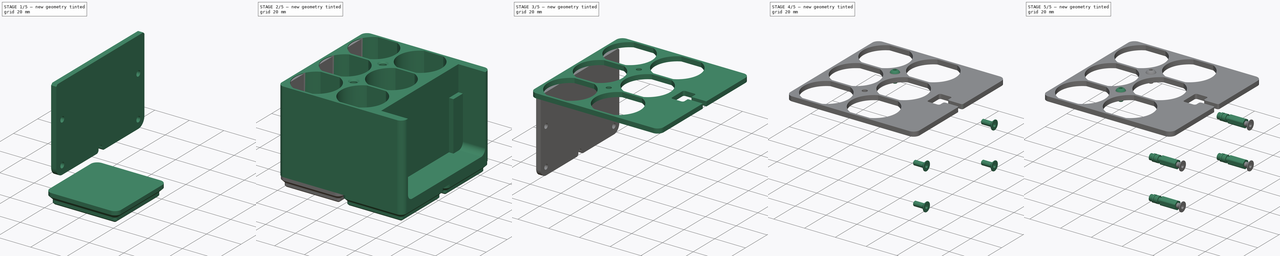
[diagram: build sequence overview — one tinted view per stage of 5, left to right]
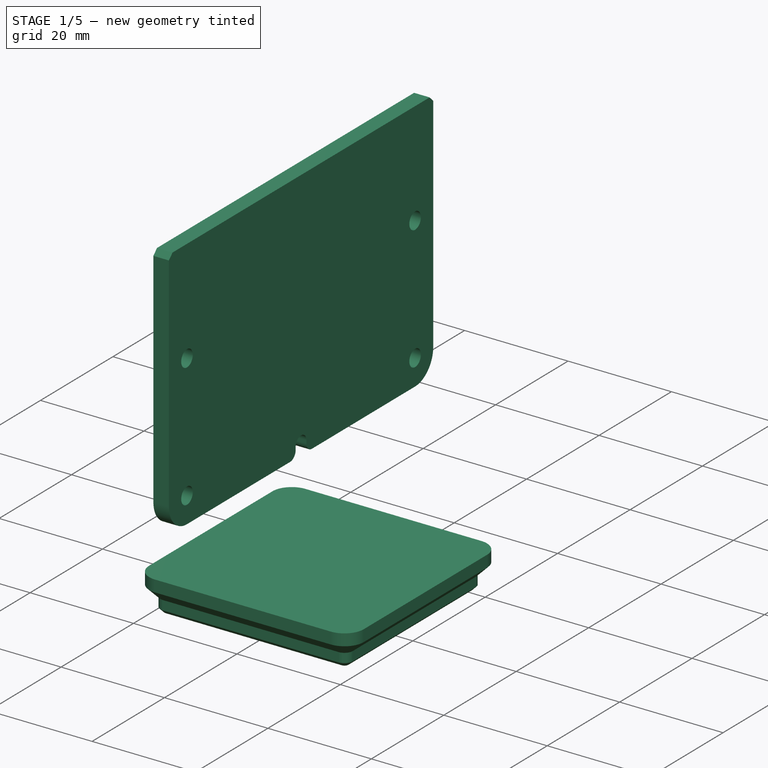
[diagram: stage 1 of 5 — iso view after this stage's code; geometry added in this stage tinted green]
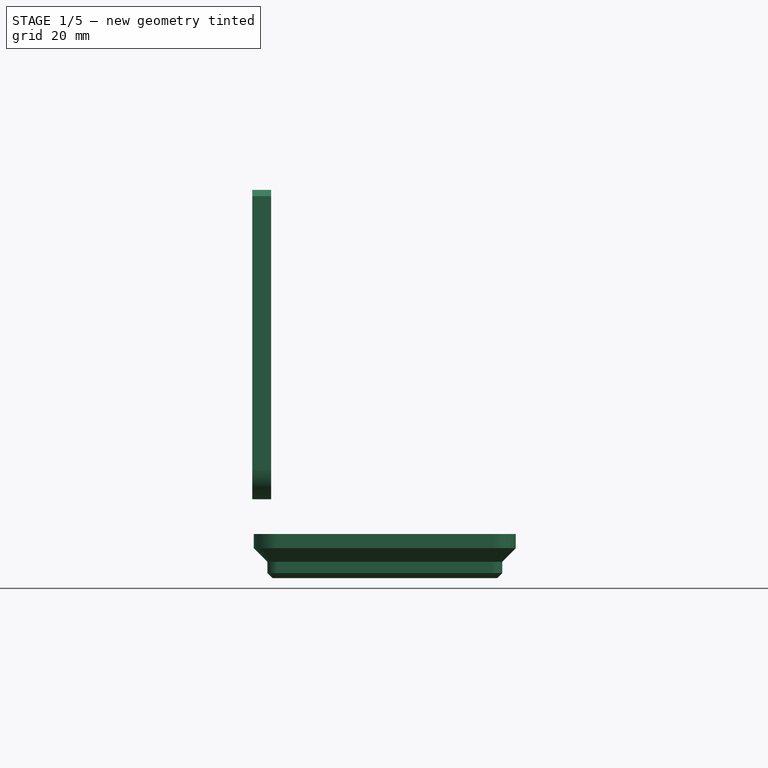
[diagram: stage 1 of 5 — front view after this stage's code; geometry added in this stage tinted green]
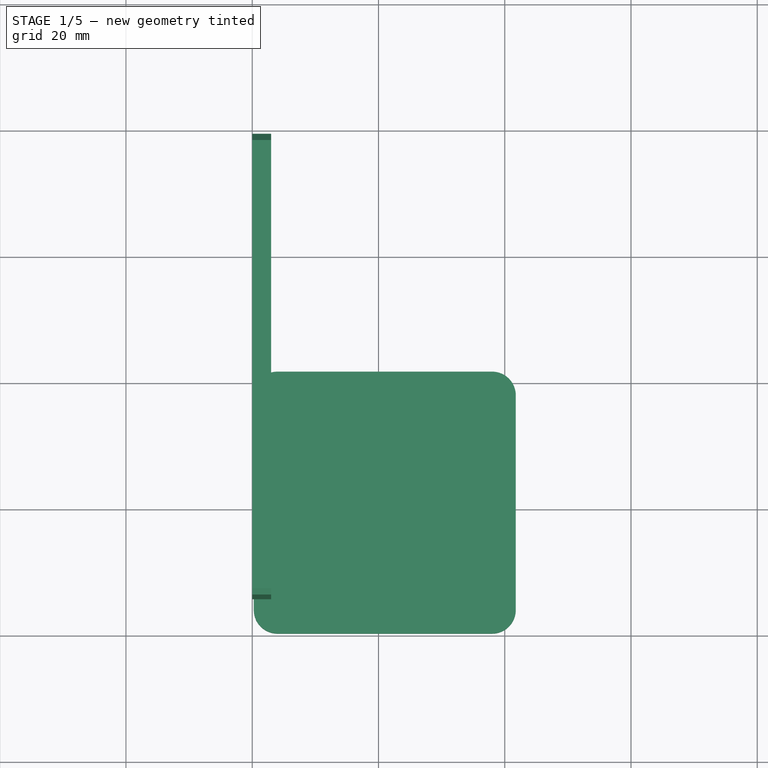
[diagram: stage 1 of 5 — top view after this stage's code; geometry added in this stage tinted green]
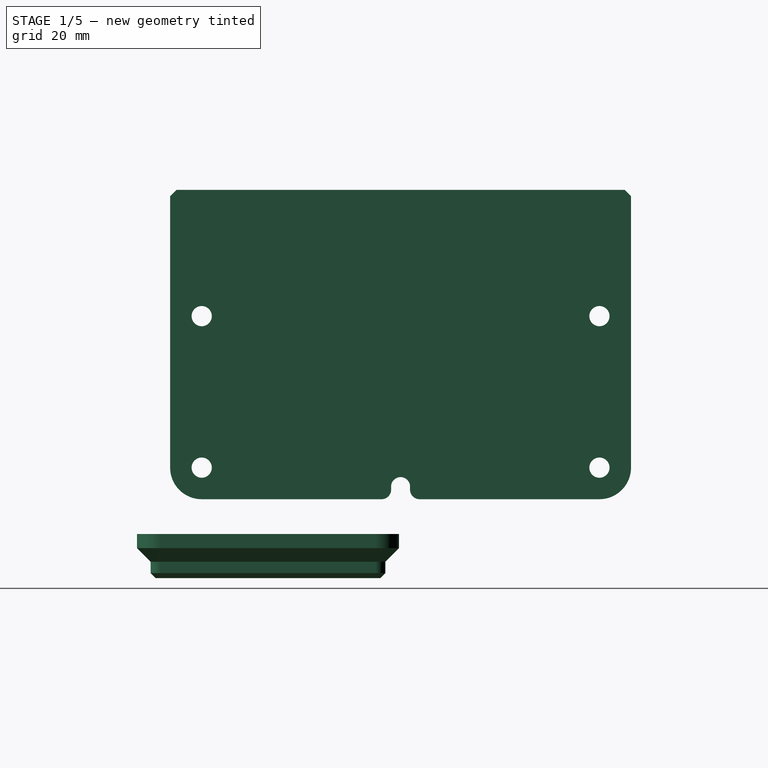
[diagram: stage 1 of 5 — right view after this stage's code; geometry added in this stage tinted green]
FCSTD DOCUMENT  (FreeCAD 2024.113R14555 (Git shallow))
Label: GridfinityBatteryDock
License: All rights reserved
LicenseURL: https://en.wikipedia.org/wiki/All_rights_reserved
objects: Sketcher::SketchObject×15, Part::FeaturePython×14, PartDesign::Pocket×10, PartDesign::Pad×6, PartDesign::Fillet×6, PartDesign::LinearPattern×5, PartDesign::Chamfer×4, PartDesign::Body×4, TechDraw::DrawProjGroupItem×4, TechDraw::DrawProjGroup×4, TechDraw::DrawSVGTemplate×3, TechDraw::DrawPage×3, PartDesign::MultiTransform×2, App::Part×2, App::DocumentObjectGroup×2, PartDesign::SubShapeBinder×1, App::VRMLObject×1, PartDesign::FeatureBase×1, Part::SubShapeBinder×1
note: 151 computed .brp shape members not serialized (recipe doc carries the construction recipe); baked Part::Feature solids carry a one-line shape summary decoded from their .brp

FEATURE [Sketcher::SketchObject] Sketch001
  ArcFitTolerance = 1e-06
  AttachmentSupport = -> [XY_Plane001]
  ExternalBSplineMaxDegree = 5
  ExternalBSplineTolerance = 0.0001
  FixShape = 1
  FullyConstrained = true
  InternalTolerance = 1e-06
  InvalidShape = false
  MakeInternals = false
  MapMode = 5
  Support = -> [XY_Plane001]
  TreeRank = 281
  ValidateShape = false
  sketch-geometry (11):
    g0: ArcOfCircle CenterX=4 CenterY=4 CenterZ=0 NormalX=0 NormalY=0 NormalZ=1 AngleXU=0 Radius=3.75 StartAngle=3.14159 EndAngle=4.71239
    g1: LineSegment StartX=0.25 StartY=4 StartZ=0 EndX=0.25 EndY=38 EndZ=0
    g2: ArcOfCircle CenterX=4 CenterY=38 CenterZ=0 NormalX=0 NormalY=0 NormalZ=1 AngleXU=0 Radius=3.75 StartAngle=1.5708 EndAngle=3.14159
    g3: LineSegment StartX=4 StartY=41.75 StartZ=0 EndX=38 EndY=41.75 EndZ=0
    g4: ArcOfCircle CenterX=38 CenterY=38 CenterZ=0 NormalX=0 NormalY=0 NormalZ=1 AngleXU=0 Radius=3.75 StartAngle=3e-16 EndAngle=1.5708
    g5: LineSegment StartX=41.75 StartY=38 StartZ=0 EndX=41.75 EndY=4 EndZ=0
    g6: ArcOfCircle CenterX=38 CenterY=4 CenterZ=0 NormalX=0 NormalY=0 NormalZ=1 AngleXU=0 Radius=3.75 StartAngle=4.71239 EndAngle=6.28319
    g7: LineSegment StartX=38 StartY=0.25 StartZ=0 EndX=4 EndY=0.25 EndZ=0
    g8: GeomPoint [constr] X=0.25 Y=0.25 Z=0
    g9: GeomPoint [constr] X=41.75 Y=41.75 Z=0
    g10: GeomPoint [constr] X=21 Y=21 Z=0
  constraints (25):
    c: Tangent(g0,g1) = 1.5708
    c: Tangent(g1,g2) = 1.5708
    c: Tangent(g2,g3) = 1.5708
    c: Tangent(g3,g4) = 1.5708
    c: Tangent(g4,g5) = 1.5708
    c: Tangent(g5,g6) = 1.5708
    c: Tangent(g6,g7) = 1.5708
    c: Tangent(g7,g0) = 1.5708
    c: Horizontal(g3)
    c: Horizontal(g7)
    c: Vertical(g1)
    c: Vertical(g5)
    c: Equal(g0,g2)
    c: Equal(g2,g4)
    c: Equal(g4,g6)
    c: PointOnObject(g8,g1)
    c: PointOnObject(g8,g7)
    c: PointOnObject(g9,g3)
    c: PointOnObject(g9,g5)
    c: Symmetric(g0,g4,g10)
    c: DistanceX(g-1,g10) = 21
    c: Equal(g7,g1)
    c: Radius(g6) = 3.75
    c: DistanceX(g0,g5) = 41.5
    c: DistanceY(g-1,g10) = 21
FEATURE [PartDesign::Pad] Pad001
  AddSubType = 0
  AlongSketchNormal = false
  AutoTaperInnerAngle = true
  CheckUpToFaceLimits = true
  ClaimChildren = false
  Direction = (0,0,1)
  Fit = 0
  FitJoin = 0
  FixShape = 1
  InnerFit = 0
  InnerFitJoin = 0
  InvalidShape = false
  Length = 4.4
  Length2 = 10
  Linearize = true
  NewSolid = false
  Profile = -> Sketch001
  ReferenceAxis = -> Sketch001 [N_Axis]
  Refine = true
  Reversed = true
  Suppress = false
  TaperInnerAngle = 0
  TaperInnerAngleRev = 0
  TreeRank = 282
  Type = 0
  ValidateShape = true
  _ProfileBasedVersion = 1
FEATURE [Sketcher::SketchObject] Sketch002
  ArcFitTolerance = 1e-06
  AttachmentSupport = -> [Pad001]
  ExternalBSplineMaxDegree = 5
  ExternalBSplineTolerance = 0.0001
  FixShape = 1
  FullyConstrained = true
  InternalTolerance = 1e-06
  InvalidShape = false
  MakeInternals = false
  MapMode = 5
  Placement = pos=(0,0,-4.4) rot=(1,0,0;3.14159rad)
  Support = -> [Pad001]
  TreeRank = 283
  ValidateShape = false
  sketch-geometry (11):
    g0: ArcOfCircle CenterX=4 CenterY=-4 CenterZ=0 NormalX=0 NormalY=0 NormalZ=1 AngleXU=0 Radius=1.6 StartAngle=1.5708 EndAngle=3.14159
    g1: LineSegment StartX=4 StartY=-2.4 StartZ=0 EndX=38 EndY=-2.4 EndZ=0
    g2: ArcOfCircle CenterX=38 CenterY=-4 CenterZ=0 NormalX=0 NormalY=0 NormalZ=1 AngleXU=0 Radius=1.6 StartAngle=0 EndAngle=1.5708
    g3: LineSegment StartX=39.6 StartY=-4 StartZ=0 EndX=39.6 EndY=-38 EndZ=0
    g4: ArcOfCircle CenterX=38 CenterY=-38 CenterZ=0 NormalX=0 NormalY=0 NormalZ=1 AngleXU=0 Radius=1.6 StartAngle=4.71239 EndAngle=6.28319
    g5: LineSegment StartX=38 StartY=-39.6 StartZ=0 EndX=4 EndY=-39.6 EndZ=0
    g6: ArcOfCircle CenterX=4 CenterY=-38 CenterZ=0 NormalX=0 NormalY=0 NormalZ=1 AngleXU=0 Radius=1.6 StartAngle=3.14159 EndAngle=4.71239
    g7: LineSegment StartX=2.4 StartY=-38 StartZ=0 EndX=2.4 EndY=-4 EndZ=0
    g8: GeomPoint [constr] X=2.4 Y=-2.4 Z=0
    g9: GeomPoint [constr] X=39.6 Y=-39.6 Z=0
    g10: GeomPoint [constr] X=21 Y=-21 Z=0
  constraints (25):
    c: Tangent(g0,g1) = 1.5708
    c: Tangent(g1,g2) = 1.5708
    c: Tangent(g2,g3) = 1.5708
    c: Tangent(g3,g4) = 1.5708
    c: Tangent(g4,g5) = 1.5708
    c: Tangent(g5,g6) = 1.5708
    c: Tangent(g6,g7) = 1.5708
    c: Tangent(g7,g0) = 1.5708
    c: Horizontal(g1)
    c: Horizontal(g5)
    c: Vertical(g3)
    c: Vertical(g7)
    c: Equal(g0,g2)
    c: Equal(g2,g4)
    c: Equal(g4,g6)
    c: PointOnObject(g8,g1)
    c: PointOnObject(g8,g7)
    c: PointOnObject(g9,g3)
    c: PointOnObject(g9,g5)
    c: Equal(g1,g3)
    c: Symmetric(g0,g4,g10)
    c: Radius(g2) = 1.6
    c: DistanceY(g10,g-1) = 21
    c: DistanceX(g-1,g10) = 21
    c: DistanceX(g0,g2) = 37.2
FEATURE [PartDesign::Pad] Pad002
  AddSubType = 0
  AlongSketchNormal = false
  AutoTaperInnerAngle = true
  BaseFeature = -> Pad001
  CheckUpToFaceLimits = true
  ClaimChildren = false
  Direction = (0,0,-1)
  Fit = 0
  FitJoin = 0
  FixShape = 1
  InnerFit = 0
  InnerFitJoin = 0
  InvalidShape = false
  Length = 2.6
  Length2 = 10
  Linearize = true
  NewSolid = false
  Profile = -> Sketch002
  ReferenceAxis = -> Sketch002 [N_Axis]
  Refine = true
  Suppress = false
  TaperInnerAngle = 0
  TaperInnerAngleRev = 0
  TreeRank = 284
  Type = 0
  ValidateShape = true
  _ProfileBasedVersion = 1
FEATURE [PartDesign::Chamfer] Chamfer
  AddSubType = 0
  Angle = 45
  Base = -> Pad002 [Edge37]
  BaseFeature = -> Pad002
  ChamferType = 0
  FixShape = 1
  FlipDirection = false
  InvalidShape = false
  NewSolid = false
  Refine = true
  Size = 0.8
  Size2 = 1
  SupportTransform = false
  Suppress = false
  TreeRank = 285
  UseAllEdges = false
  ValidateShape = true
FEATURE [PartDesign::Chamfer] Chamfer001
  AddSubType = 0
  Angle = 45
  Base = -> Chamfer [Edge15]
  BaseFeature = -> Chamfer
  ChamferType = 0
  FixShape = 1
  FlipDirection = false
  InvalidShape = false
  NewSolid = false
  Refine = true
  Size = 2.149
  Size2 = 1
  SupportTransform = false
  Suppress = false
  TreeRank = 286
  UseAllEdges = false
  ValidateShape = true
FEATURE [Sketcher::SketchObject] Sketch009
  ArcFitTolerance = 1e-06
  AttachmentSupport = -> [YZ_Plane002]
  ExternalBSplineMaxDegree = 5
  ExternalBSplineTolerance = 0.0001
  FixShape = 1
  FullyConstrained = true
  InternalTolerance = 1e-06
  InvalidShape = false
  MakeInternals = false
  MapMode = 5
  Placement = pos=(0,0,0) rot=(0.57735,0.57735,0.57735;2.0944rad)
  Support = -> [YZ_Plane002]
  TreeRank = 370
  ValidateShape = false
  sketch-geometry (14):
    g0: LineSegment StartX=5.5 StartY=5.5 StartZ=0 EndX=5.5 EndY=54.5 EndZ=0
    g1: LineSegment StartX=5.5 StartY=54.5 StartZ=0 EndX=78.5 EndY=54.5 EndZ=0
    g2: LineSegment StartX=78.5 StartY=54.5 StartZ=0 EndX=78.5 EndY=5.5 EndZ=0
    g3: LineSegment StartX=78.5 StartY=5.5 StartZ=0 EndX=5.5 EndY=5.5 EndZ=0
    g4: GeomPoint [constr] X=42 Y=30 Z=0
    g5: LineSegment [constr] StartX=10.5 StartY=10.5 StartZ=0 EndX=10.5 EndY=34.5 EndZ=0
    g6: LineSegment [constr] StartX=10.5 StartY=34.5 StartZ=0 EndX=73.5 EndY=34.5 EndZ=0
    g7: LineSegment [constr] StartX=73.5 StartY=34.5 StartZ=0 EndX=73.5 EndY=10.5 EndZ=0
    g8: LineSegment [constr] StartX=73.5 StartY=10.5 StartZ=0 EndX=10.5 EndY=10.5 EndZ=0
    g9: GeomPoint [constr] X=42 Y=22.5 Z=0
    g10: Circle CenterX=10.5 CenterY=34.5 CenterZ=0 NormalX=0 NormalY=0 NormalZ=1 AngleXU=0 Radius=1.6
    g11: Circle CenterX=73.5 CenterY=34.5 CenterZ=0 NormalX=0 NormalY=0 NormalZ=1 AngleXU=0 Radius=1.6
    g12: Circle CenterX=73.5 CenterY=10.5 CenterZ=0 NormalX=0 NormalY=0 NormalZ=1 AngleXU=0 Radius=1.6
    g13: Circle CenterX=10.5 CenterY=10.5 CenterZ=0 NormalX=0 NormalY=0 NormalZ=1 AngleXU=0 Radius=1.6
  constraints (34):
    c: Coincident(g0,g1)
    c: Coincident(g1,g2)
    c: Coincident(g2,g3)
    c: Coincident(g3,g0)
    c: Horizontal(g1)
    c: Horizontal(g3)
    c: Vertical(g0)
    c: Vertical(g2)
    c: Symmetric(g1,g0,g4)
    c: DistanceX(g-1,g4) = 42
    c: DistanceY(g-1,g0) = 54.5
    c: DistanceY(g-1,g0) = 5.5
    c: DistanceX(g1,g1) = 73
    c: Coincident(g5,g6)
    c: Coincident(g6,g7)
    c: Coincident(g7,g8)
    c: Coincident(g8,g5)
    c: Horizontal(g6)
    c: Horizontal(g8)
    c: Vertical(g5)
    c: Vertical(g7)
    c: Symmetric(g6,g5,g9)
    c: Vertical(g9,g4)
    c: DistanceY(g5,g5) = 24
    c: DistanceX(g6,g6) = 63
    c: DistanceY(g0,g5) = 5
    c: Coincident(g10,g5)
    c: Coincident(g11,g6)
    c: Coincident(g12,g7)
    c: Coincident(g13,g5)
    c: Equal(g13,g10)
    c: Equal(g13,g11)
    c: Equal(g13,g12)
    c: Diameter(g13) = 3.2
FEATURE [PartDesign::Pad] Pad005
  AddSubType = 0
  AlongSketchNormal = false
  AutoTaperInnerAngle = true
  CheckUpToFaceLimits = true
  ClaimChildren = false
  Direction = (1,-2e-16,3e-16)
  Fit = 0
  FitJoin = 0
  FixShape = 1
  InnerFit = 0
  InnerFitJoin = 0
  InvalidShape = false
  Length = 3
  Length2 = 10
  Linearize = true
  NewSolid = false
  Profile = -> Sketch009
  ReferenceAxis = -> Sketch009 [N_Axis]
  Refine = true
  Suppress = false
  TaperInnerAngle = 0
  TaperInnerAngleRev = 0
  TreeRank = 371
  Type = 0
  ValidateShape = true
  _ProfileBasedVersion = 1
FEATURE [PartDesign::Fillet] Fillet002
  AddSubType = 0
  Base = -> Pad005 [Edge1,Edge8]
  BaseFeature = -> Pad005
  FixShape = 1
  InvalidShape = false
  NewSolid = false
  Radius = 5
  Refine = true
  SupportTransform = false
  Suppress = false
  TreeRank = 372
  UseAllEdges = false
  ValidateShape = true
FEATURE [PartDesign::Body] Body  label="TopDockPlexi"
  AutoGroupSolids = false
  ClaimAllChildren = false
  ExportMode = 0
  FixShape = 1
  Group = -> [Binder,Pad003,Sketch010,Pocket005,Sketch011,Pocket006,LinearPattern004,Sketch012,Pocket007]
  InvalidShape = false
  Origin = -> Origin
  SingleSolid = true
  Tip = -> Pocket007
  TreeRank = 308
  ValidateShape = false
  _ExportChildren = -> [Pad003,Pocket005,Pocket006,LinearPattern004,Pocket007]
  _GroupVersion = 1
FEATURE [PartDesign::Chamfer] Chamfer003
  AddSubType = 0
  Angle = 45
  Base = -> Fillet002 [Edge3,Edge16]
  BaseFeature = -> Fillet002
  ChamferType = 0
  FixShape = 1
  FlipDirection = false
  InvalidShape = false
  NewSolid = false
  Refine = true
  Size = 1
  Size2 = 1
  SupportTransform = false
  Suppress = false
  TreeRank = 392
  UseAllEdges = false
  ValidateShape = true
FEATURE [Sketcher::SketchObject] Sketch014
  ArcFitTolerance = 1e-06
  AttachmentSupport = -> [Chamfer003]
  ExternalBSplineMaxDegree = 5
  ExternalBSplineTolerance = 0.0001
  ExternalGeometry = -> [Chamfer003]
  FixShape = 1
  FullyConstrained = true
  InternalTolerance = 1e-06
  InvalidShape = false
  MakeInternals = false
  MapMode = 5
  Placement = pos=(3,-7e-16,0) rot=(0.57735,0.57735,0.57735;2.0944rad)
  Support = -> [Chamfer003]
  TreeRank = 421
  ValidateShape = false
  sketch-geometry (4):
    g0: ArcOfCircle CenterX=42 CenterY=5.5 CenterZ=0 NormalX=0 NormalY=0 NormalZ=1 AngleXU=0 Radius=1.5 StartAngle=3.14159 EndAngle=6.28319
    g1: ArcOfCircle CenterX=42 CenterY=7.5 CenterZ=0 NormalX=0 NormalY=0 NormalZ=1 AngleXU=0 Radius=1.5 StartAngle=8.5e-15 EndAngle=3.14159
    g2: LineSegment StartX=43.5 StartY=5.5 StartZ=0 EndX=43.5 EndY=7.5 EndZ=0
    g3: LineSegment StartX=40.5 StartY=7.5 StartZ=0 EndX=40.5 EndY=5.5 EndZ=0
  constraints (10):
    c: Tangent(g0,g2) = -1.5708
    c: Tangent(g2,g1) = -1.5708
    c: Tangent(g1,g3) = -1.5708
    c: Tangent(g3,g0) = -1.5708
    c: Equal(g0,g1)
    c: PointOnObject(g0,g-3)
    c: Vertical(g2)
    c: DistanceX(g1,g1) = 3
    c: DistanceX(g0) = 42
    c: DistanceY(g0,g1) = 2
FEATURE [PartDesign::Pocket] Pocket009
  AddSubType = 1
  AlongSketchNormal = false
  AutoTaperInnerAngle = true
  BaseFeature = -> Chamfer003
  CheckUpToFaceLimits = true
  ClaimChildren = false
  Direction = (-1,1e-16,1e-16)
  Fit = 0
  FitJoin = 0
  FixShape = 1
  InnerFit = 0
  InnerFitJoin = 0
  InvalidShape = false
  Length = 5
  Length2 = 10
  Linearize = true
  NewSolid = false
  Profile = -> Sketch014
  ReferenceAxis = -> Sketch014 [N_Axis]
  Refine = true
  Suppress = false
  TaperInnerAngle = 0
  TaperInnerAngleRev = 0
  TreeRank = 422
  Type = 1
  ValidateShape = true
  _ProfileBasedVersion = 1
  _Version = 1
FEATURE [PartDesign::Fillet] Fillet004
  AddSubType = 0
  Base = -> Pocket009 [Edge41,Edge44]
  BaseFeature = -> Pocket009
  FixShape = 1
  InvalidShape = false
  NewSolid = false
  Radius = 1.5
  Refine = true
  SupportTransform = false
  Suppress = false
  TreeRank = 423
  UseAllEdges = false
  ValidateShape = true
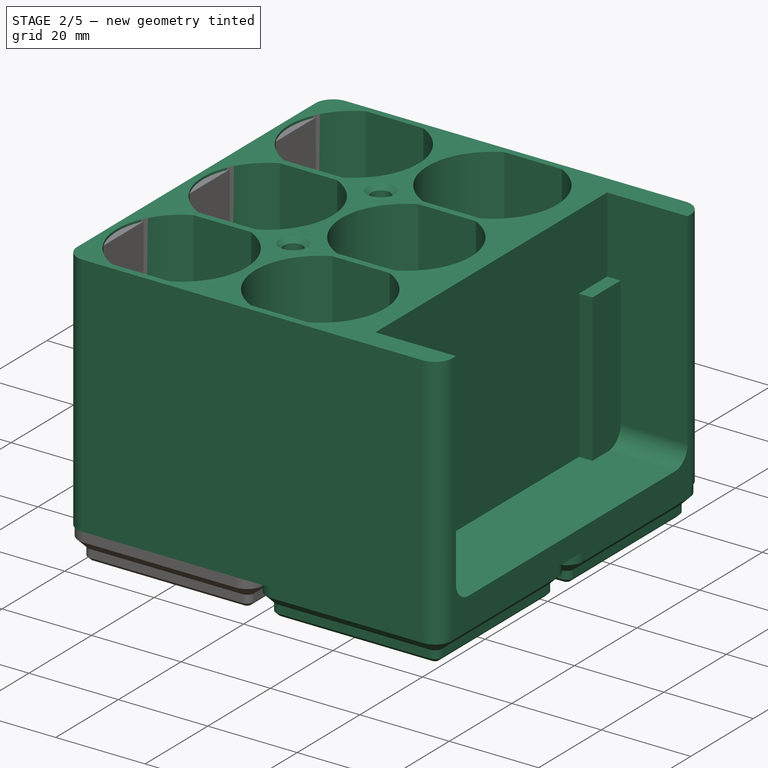
[diagram: stage 2 of 5 — iso view after this stage's code; geometry added in this stage tinted green]
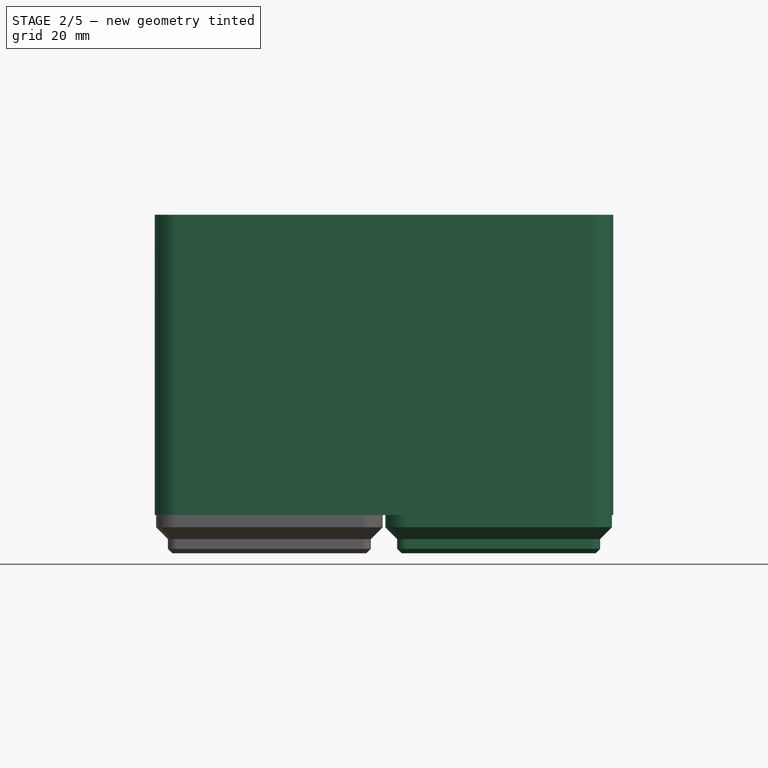
[diagram: stage 2 of 5 — front view after this stage's code; geometry added in this stage tinted green]
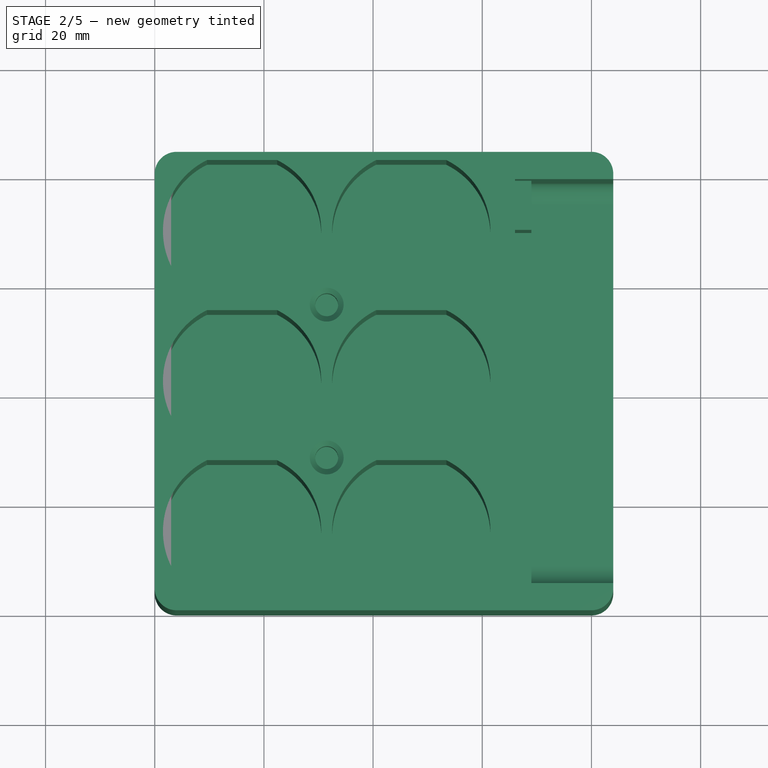
[diagram: stage 2 of 5 — top view after this stage's code; geometry added in this stage tinted green]
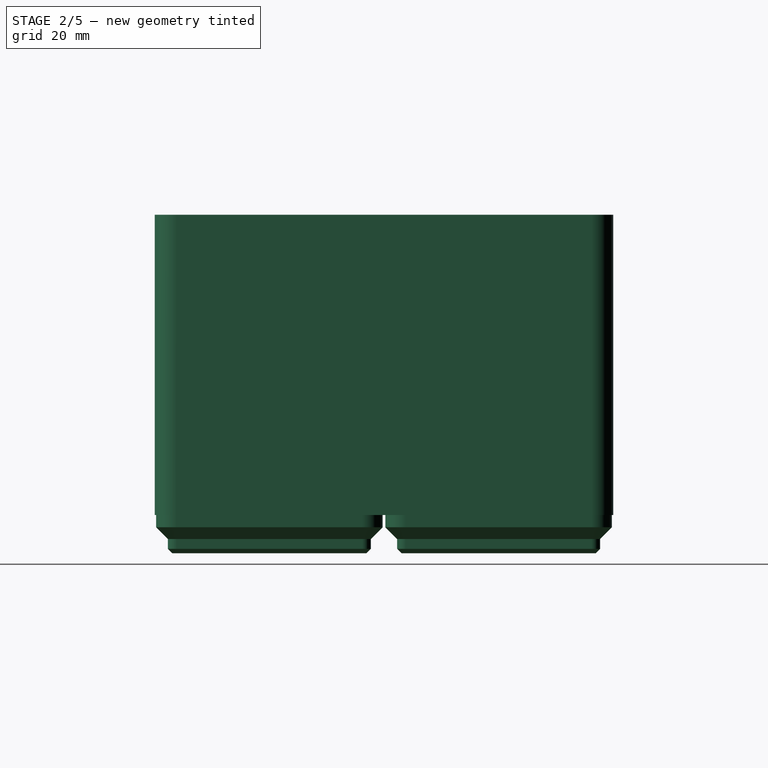
[diagram: stage 2 of 5 — right view after this stage's code; geometry added in this stage tinted green]
FEATURE [PartDesign::LinearPattern] LinearPattern
  AddSubType = 0
  CopyShape = false
  Direction = -> Sketch001 [H_Axis]
  FixShape = 1
  InvalidShape = false
  Length = 42
  NewSolid = false
  Occurrences = 2
  ParallelTransform = true
  Refine = true
  SubTransform = true
  Suppress = false
  TreeRank = 288
  ValidateShape = true
  _Version = 3
FEATURE [PartDesign::LinearPattern] LinearPattern001
  AddSubType = 0
  CopyShape = false
  Direction = -> Sketch001 [V_Axis]
  FixShape = 1
  InvalidShape = false
  Length = 42
  NewSolid = false
  Occurrences = 2
  ParallelTransform = true
  Refine = true
  SubTransform = true
  Suppress = false
  TreeRank = 289
  ValidateShape = true
  _Version = 3
FEATURE [PartDesign::MultiTransform] MultiTransform
  AddSubType = 0
  BaseFeature = -> Chamfer001
  CopyShape = false
  FixShape = 1
  InvalidShape = false
  NewSolid = false
  OriginalSubs = -> [Pad001,Pad002,Chamfer,Chamfer001]
  Originals = -> [Pad001,Pad002,Chamfer,Chamfer001]
  ParallelTransform = true
  Refine = true
  SubTransform = true
  Suppress = false
  Transformations = -> [LinearPattern,LinearPattern001]
  TreeRank = 287
  ValidateShape = true
  _Version = 3
FEATURE [Sketcher::SketchObject] Sketch
  ArcFitTolerance = 1e-06
  AttachmentSupport = -> [XY_Plane001]
  ExternalBSplineMaxDegree = 5
  ExternalBSplineTolerance = 0.0001
  ExternalGeometry = -> [MultiTransform]
  FixShape = 1
  FullyConstrained = true
  InternalTolerance = 1e-06
  InvalidShape = false
  MakeInternals = false
  MapMode = 5
  Support = -> [XY_Plane001]
  TreeRank = 290
  ValidateShape = false
  sketch-geometry (10):
    g0: ArcOfCircle CenterX=4 CenterY=4 CenterZ=0 NormalX=0 NormalY=0 NormalZ=1 AngleXU=0 Radius=4 StartAngle=3.14159 EndAngle=4.71239
    g1: LineSegment StartX=0 StartY=4 StartZ=0 EndX=0 EndY=80 EndZ=0
    g2: ArcOfCircle CenterX=4 CenterY=80 CenterZ=0 NormalX=0 NormalY=0 NormalZ=1 AngleXU=0 Radius=4 StartAngle=1.5708 EndAngle=3.14159
    g3: LineSegment StartX=4 StartY=84 StartZ=0 EndX=80 EndY=84 EndZ=0
    g4: ArcOfCircle CenterX=80 CenterY=80 CenterZ=0 NormalX=0 NormalY=0 NormalZ=1 AngleXU=0 Radius=4 StartAngle=1.6e-15 EndAngle=1.5708
    g5: LineSegment StartX=84 StartY=80 StartZ=0 EndX=84 EndY=4 EndZ=0
    g6: ArcOfCircle CenterX=80 CenterY=4 CenterZ=0 NormalX=0 NormalY=0 NormalZ=1 AngleXU=0 Radius=4 StartAngle=4.71239 EndAngle=6.28319
    g7: LineSegment StartX=80 StartY=0 StartZ=0 EndX=4 EndY=0 EndZ=0
    g8: GeomPoint [constr] X=0 Y=0 Z=0
    g9: GeomPoint [constr] X=84 Y=84 Z=0
  constraints (22):
    c: Tangent(g0,g1) = 1.5708
    c: Tangent(g1,g2) = 1.5708
    c: Tangent(g2,g3) = 1.5708
    c: Tangent(g3,g4) = 1.5708
    c: Tangent(g4,g5) = 1.5708
    c: Tangent(g5,g6) = 1.5708
    c: Tangent(g6,g7) = 1.5708
    c: Tangent(g7,g0) = 1.5708
    c: Horizontal(g3)
    c: Horizontal(g7)
    c: Vertical(g1)
    c: Vertical(g5)
    c: Equal(g0,g2)
    c: Equal(g2,g4)
    c: Equal(g4,g6)
    c: PointOnObject(g8,g1)
    c: PointOnObject(g8,g7)
    c: PointOnObject(g9,g3)
    c: PointOnObject(g9,g5)
    c: Coincident(g8,g-1)
    c: DistanceY(g0,g2) = 84
    c: Coincident(g4,g-3)
FEATURE [PartDesign::Pad] Pad
  AddSubType = 0
  AlongSketchNormal = false
  AutoTaperInnerAngle = true
  BaseFeature = -> MultiTransform
  CheckUpToFaceLimits = true
  ClaimChildren = false
  Direction = (0,0,1)
  Fit = 0
  FitJoin = 0
  FixShape = 1
  InnerFit = 0
  InnerFitJoin = 0
  InvalidShape = false
  Length = 55
  Length2 = 10
  Linearize = true
  NewSolid = false
  Profile = -> Sketch
  ReferenceAxis = -> Sketch [N_Axis]
  Refine = true
  Suppress = false
  TaperInnerAngle = 0
  TaperInnerAngleRev = 0
  TreeRank = 291
  Type = 0
  ValidateShape = true
  _ProfileBasedVersion = 1
FEATURE [Sketcher::SketchObject] Sketch003
  ArcFitTolerance = 1e-06
  AttachmentOffset = pos=(0,0,5) rot=(0,0,1;0rad)
  AttachmentSupport = -> [XY_Plane001]
  ExternalBSplineMaxDegree = 5
  ExternalBSplineTolerance = 0.0001
  FixShape = 1
  FullyConstrained = true
  InternalTolerance = 1e-06
  InvalidShape = false
  MakeInternals = false
  MapMode = 5
  Placement = pos=(0,0,5) rot=(0,0,1;0rad)
  Support = -> [XY_Plane001]
  TreeRank = 292
  ValidateShape = false
  sketch-geometry (4):
    g0: ArcOfCircle CenterX=16 CenterY=14.5 CenterZ=0 NormalX=0 NormalY=0 NormalZ=1 AngleXU=0 Radius=14.5 StartAngle=5.17126 EndAngle=7.39511
    g1: ArcOfCircle CenterX=16 CenterY=14.5 CenterZ=0 NormalX=0 NormalY=0 NormalZ=1 AngleXU=0 Radius=14.5 StartAngle=2.02967 EndAngle=4.25351
    g2: LineSegment StartX=22.4226 StartY=1.5 StartZ=0 EndX=9.57738 EndY=1.5 EndZ=0
    g3: LineSegment StartX=22.4226 StartY=27.5 StartZ=0 EndX=9.57738 EndY=27.5 EndZ=0
  constraints (13):
    c: Coincident(g1,g0)
    c: Equal(g1,g0)
    c: Radius(g1) = 14.5
    c: Coincident(g2,g0)
    c: Coincident(g2,g1)
    c: Coincident(g3,g0)
    c: Coincident(g3,g1)
    c: Equal(g2,g3)
    c: Parallel(g3,g2)
    c: DistanceX(g-1,g0) = 16
    c: DistanceY(g-1,g0) = 14.5
    c: Horizontal(g3)
    c: DistanceY(g0,g0) = 26
FEATURE [PartDesign::Pocket] Pocket
  AddSubType = 1
  AlongSketchNormal = false
  AutoTaperInnerAngle = true
  BaseFeature = -> Pad
  CheckUpToFaceLimits = true
  ClaimChildren = false
  Direction = (0,0,-1)
  Fit = 0
  FitJoin = 0
  FixShape = 1
  InnerFit = 0
  InnerFitJoin = 0
  InvalidShape = false
  Length = 5
  Length2 = 10
  Linearize = true
  NewSolid = false
  Profile = -> Sketch003
  ReferenceAxis = -> Sketch003 [N_Axis]
  Refine = true
  Reversed = true
  Suppress = false
  TaperInnerAngle = 0
  TaperInnerAngleRev = 0
  TreeRank = 293
  Type = 1
  ValidateShape = true
  _ProfileBasedVersion = 1
  _Version = 1
FEATURE [PartDesign::LinearPattern] LinearPattern002
  AddSubType = 0
  CopyShape = false
  Direction = -> Sketch003 [H_Axis]
  FixShape = 1
  InvalidShape = false
  Length = 31
  NewSolid = false
  Occurrences = 2
  ParallelTransform = true
  Refine = true
  SubTransform = true
  Suppress = false
  TreeRank = 295
  ValidateShape = true
  _Version = 3
FEATURE [PartDesign::LinearPattern] LinearPattern003
  AddSubType = 0
  CopyShape = false
  Direction = -> Sketch003 [V_Axis]
  FixShape = 1
  InvalidShape = false
  Length = 55
  NewSolid = false
  Occurrences = 3
  ParallelTransform = true
  Refine = true
  SubTransform = true
  Suppress = false
  TreeRank = 296
  ValidateShape = true
  _Version = 3
FEATURE [PartDesign::MultiTransform] MultiTransform001
  AddSubType = 0
  BaseFeature = -> Pocket
  CopyShape = false
  FixShape = 1
  InvalidShape = false
  NewSolid = false
  OriginalSubs = -> [Pocket]
  Originals = -> [Pocket]
  ParallelTransform = true
  Refine = true
  SubTransform = true
  Suppress = false
  Transformations = -> [LinearPattern002,LinearPattern003]
  TreeRank = 294
  ValidateShape = true
  _Version = 3
FEATURE [Sketcher::SketchObject] Sketch004
  ArcFitTolerance = 1e-06
  AttachmentOffset = pos=(0,0,5) rot=(0,0,1;0rad)
  AttachmentSupport = -> [XY_Plane001]
  ExternalBSplineMaxDegree = 5
  ExternalBSplineTolerance = 0.0001
  ExternalGeometry = -> [MultiTransform001]
  FixShape = 1
  FullyConstrained = true
  InternalTolerance = 1e-06
  InvalidShape = false
  MakeInternals = false
  MapMode = 5
  Placement = pos=(0,0,5) rot=(0,0,1;0rad)
  Support = -> [XY_Plane001]
  TreeRank = 297
  ValidateShape = false
  sketch-geometry (5):
    g0: LineSegment StartX=84 StartY=5 StartZ=0 EndX=66 EndY=5 EndZ=0
    g1: LineSegment StartX=66 StartY=5 StartZ=0 EndX=66 EndY=79 EndZ=0
    g2: LineSegment StartX=66 StartY=79 StartZ=0 EndX=84 EndY=79 EndZ=0
    g3: LineSegment StartX=84 StartY=79 StartZ=0 EndX=84 EndY=5 EndZ=0
    g4: GeomPoint [constr] X=84 Y=42 Z=0
  constraints (12):
    c: Coincident(g0,g1)
    c: Coincident(g1,g2)
    c: Coincident(g2,g3)
    c: Coincident(g3,g0)
    c: Horizontal(g0)
    c: Horizontal(g2)
    c: Vertical(g1)
    c: Vertical(g3)
    c: DistanceX(g2,g2) = 18
    c: Symmetric(g-4,g-4,g4)
    c: Symmetric(g0,g2,g4)
    c: DistanceY(g2,g-3) = 5
FEATURE [PartDesign::Pocket] Pocket001
  AddSubType = 1
  AlongSketchNormal = false
  AutoTaperInnerAngle = true
  BaseFeature = -> MultiTransform001
  CheckUpToFaceLimits = true
  ClaimChildren = false
  Direction = (0,0,-1)
  Fit = 0
  FitJoin = 0
  FixShape = 1
  InnerFit = 0
  InnerFitJoin = 0
  InvalidShape = false
  Length = 5
  Length2 = 10
  Linearize = true
  NewSolid = false
  Profile = -> Sketch004
  ReferenceAxis = -> Sketch004 [N_Axis]
  Refine = true
  Reversed = true
  Suppress = false
  TaperInnerAngle = 0
  TaperInnerAngleRev = 0
  TreeRank = 298
  Type = 1
  ValidateShape = true
  _ProfileBasedVersion = 1
  _Version = 1
FEATURE [Sketcher::SketchObject] Sketch005
  ArcFitTolerance = 1e-06
  AttachmentSupport = -> [Pocket001]
  ExternalBSplineMaxDegree = 5
  ExternalBSplineTolerance = 0.0001
  ExternalGeometry = -> [Pocket001]
  FixShape = 1
  FullyConstrained = true
  InternalTolerance = 1e-06
  InvalidShape = false
  MakeInternals = false
  MapMode = 5
  Placement = pos=(0,0,55) rot=(0,0,1;0rad)
  Support = -> [Pocket001]
  TreeRank = 311
  ValidateShape = false
  sketch-geometry (5):
    g0: Circle CenterX=31.5 CenterY=56 CenterZ=0 NormalX=0 NormalY=0 NormalZ=1 AngleXU=0 Radius=2.1
    g1: Circle CenterX=31.5 CenterY=28 CenterZ=0 NormalX=0 NormalY=0 NormalZ=1 AngleXU=0 Radius=2.1
    g2: LineSegment [constr] StartX=31.5 StartY=84 StartZ=0 EndX=31.5 EndY=56 EndZ=0
    g3: LineSegment [constr] StartX=31.5 StartY=56 StartZ=0 EndX=31.5 EndY=28 EndZ=0
    g4: LineSegment [constr] StartX=31.5 StartY=28 StartZ=0 EndX=31.5 EndY=0 EndZ=0
  constraints (14):
    c: Equal(g1,g0)
    c: Diameter(g0) = 4.2
    c: PointOnObject(g2,g-3)
    c: Coincident(g2,g0)
    c: Vertical(g2)
    c: Coincident(g3,g0)
    c: Coincident(g3,g1)
    c: Coincident(g4,g1)
    c: PointOnObject(g4,g-1)
    c: Vertical(g4)
    c: Vertical(g3)
    c: Equal(g4,g3)
    c: Equal(g3,g2)
    c: DistanceX(g1) = 31.5
FEATURE [PartDesign::Pocket] Pocket002
  AddSubType = 1
  AlongSketchNormal = false
  AutoTaperInnerAngle = true
  BaseFeature = -> Pocket001
  CheckUpToFaceLimits = true
  ClaimChildren = false
  Direction = (0,0,-1)
  Fit = 0
  FitJoin = 0
  FixShape = 1
  InnerFit = 0
  InnerFitJoin = 0
  InvalidShape = false
  Length = 10
  Length2 = 10
  Linearize = true
  NewSolid = false
  Profile = -> Sketch005
  ReferenceAxis = -> Sketch005 [N_Axis]
  Refine = true
  Suppress = false
  TaperInnerAngle = 0
  TaperInnerAngleRev = 0
  TreeRank = 312
  Type = 0
  ValidateShape = true
  _ProfileBasedVersion = 1
  _Version = 1
FEATURE [PartDesign::Chamfer] Chamfer002
  AddSubType = 0
  Angle = 45
  Base = -> Pocket002 [Edge156,Edge165]
  BaseFeature = -> Pocket002
  ChamferType = 0
  FixShape = 1
  FlipDirection = false
  InvalidShape = false
  NewSolid = false
  Refine = true
  Size = 1
  Size2 = 1
  SupportTransform = false
  Suppress = false
  TreeRank = 313
  UseAllEdges = false
  ValidateShape = true
FEATURE [PartDesign::Fillet] Fillet
  AddSubType = 0
  Base = -> Chamfer002 [Edge60,Edge62]
  BaseFeature = -> Chamfer002
  FixShape = 1
  InvalidShape = false
  NewSolid = false
  Radius = 4
  Refine = true
  SupportTransform = false
  Suppress = false
  TreeRank = 314
  UseAllEdges = false
  ValidateShape = true
FEATURE [App::VRMLObject] PowerChargeUSBHub
  TreeRank = 321
FEATURE [App::Part] Part  label="PCBPowerCharge"
  ClaimAllChildren = false
  ExportMode = 1
  Group = -> [PowerChargeUSBHub]
  Origin = -> Origin022
  Placement = pos=(70,42,37.5) rot=(0.57735,0.57735,0.57735;2.0944rad)
  TreeRank = 318
  _ExportChildren = -> [PowerChargeUSBHub]
  _GroupVersion = 1
FEATURE [Sketcher::SketchObject] Sketch007
  ArcFitTolerance = 1e-06
  AttachmentSupport = -> [Fillet]
  ExternalBSplineMaxDegree = 5
  ExternalBSplineTolerance = 0.0001
  ExternalGeometry = -> [Fillet]
  FixShape = 1
  FullyConstrained = true
  InternalTolerance = 1e-06
  InvalidShape = false
  MakeInternals = false
  MapMode = 5
  Placement = pos=(66,0,0) rot=(0.57735,0.57735,0.57735;2.0944rad)
  Support = -> [Fillet]
  TreeRank = 322
  ValidateShape = false
  sketch-geometry (8):
    g0: LineSegment StartX=5 StartY=38 StartZ=0 EndX=14 EndY=38 EndZ=0
    g1: LineSegment StartX=14 StartY=38 StartZ=0 EndX=14 EndY=5 EndZ=0
    g2: LineSegment StartX=14 StartY=5 StartZ=0 EndX=5 EndY=5 EndZ=0
    g3: LineSegment StartX=5 StartY=5 StartZ=0 EndX=5 EndY=38 EndZ=0
    g4: LineSegment StartX=79 StartY=38 StartZ=0 EndX=70 EndY=38 EndZ=0
    g5: LineSegment StartX=70 StartY=38 StartZ=0 EndX=70 EndY=5 EndZ=0
    g6: LineSegment StartX=70 StartY=5 StartZ=0 EndX=79 EndY=5 EndZ=0
    g7: LineSegment StartX=79 StartY=5 StartZ=0 EndX=79 EndY=38 EndZ=0
  constraints (24):
    c: Coincident(g0,g1)
    c: Coincident(g1,g2)
    c: Coincident(g2,g3)
    c: Coincident(g3,g0)
    c: Horizontal(g0)
    c: Horizontal(g2)
    c: Vertical(g1)
    c: Vertical(g3)
    c: PointOnObject(g0,g-3)
    c: PointOnObject(g1,g-5)
    c: Coincident(g4,g5)
    c: Coincident(g5,g6)
    c: Coincident(g6,g7)
    c: Coincident(g7,g4)
    c: Horizontal(g4)
    c: Horizontal(g6)
    c: Vertical(g5)
    c: Vertical(g7)
    c: PointOnObject(g4,g-4)
    c: PointOnObject(g5,g-5)
    c: Horizontal(g0,g4)
    c: DistanceX(g0,g0) = 9
    c: Equal(g4,g0)
    c: DistanceY(g3,g3) = 33
FEATURE [PartDesign::Pad] Pad004
  AddSubType = 0
  AlongSketchNormal = false
  AutoTaperInnerAngle = true
  BaseFeature = -> Fillet
  CheckUpToFaceLimits = true
  ClaimChildren = false
  Direction = (1,0,0)
  Fit = 0
  FitJoin = 0
  FixShape = 1
  InnerFit = 0
  InnerFitJoin = 0
  InvalidShape = false
  Length = 3
  Length2 = 10
  Linearize = true
  NewSolid = false
  Profile = -> Sketch007
  ReferenceAxis = -> Sketch007 [N_Axis]
  Refine = true
  Suppress = false
  TaperInnerAngle = 0
  TaperInnerAngleRev = 0
  TreeRank = 323
  Type = 0
  ValidateShape = true
  _ProfileBasedVersion = 1
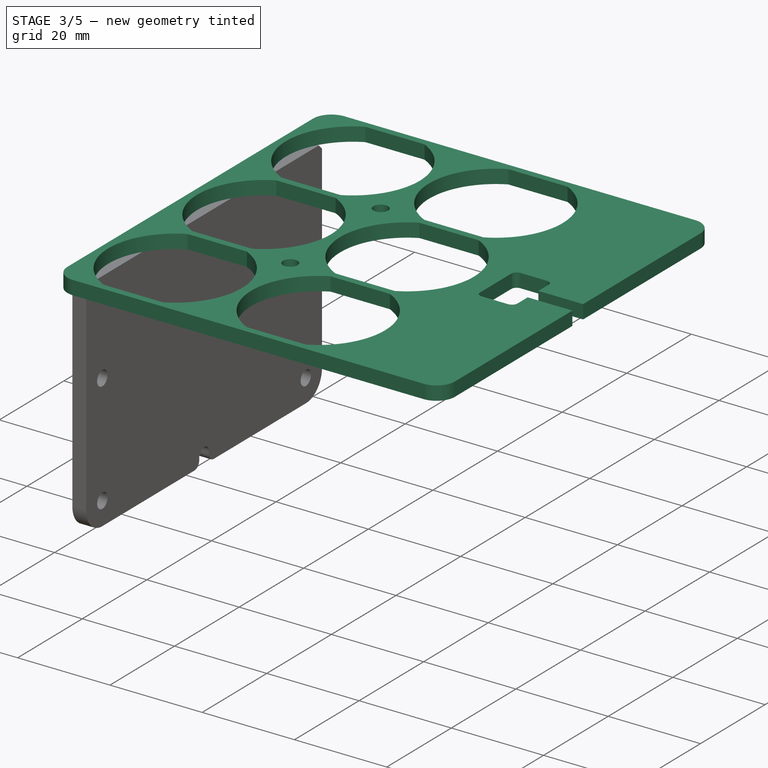
[diagram: stage 3 of 5 — iso view after this stage's code; geometry added in this stage tinted green]
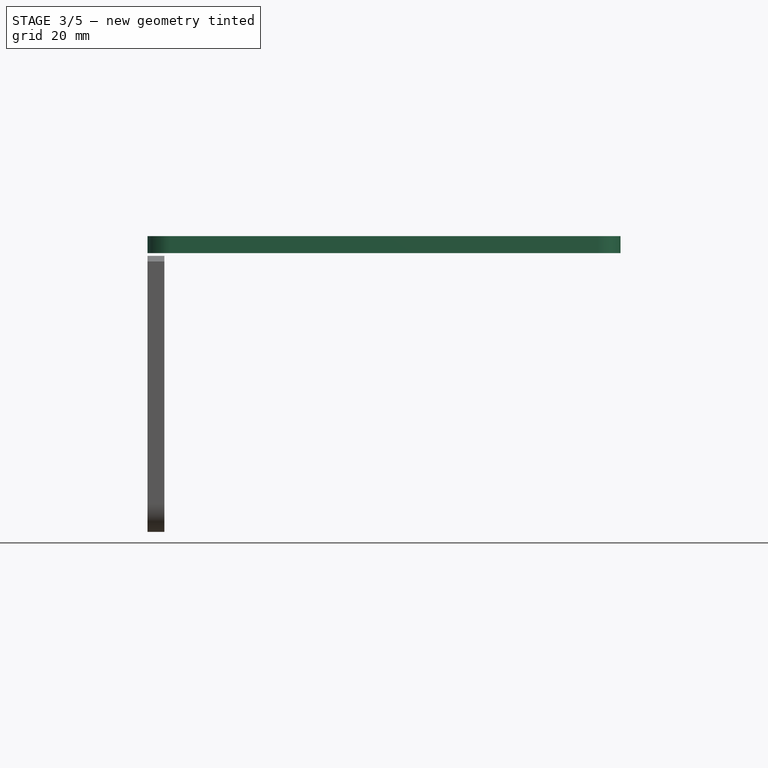
[diagram: stage 3 of 5 — front view after this stage's code; geometry added in this stage tinted green]
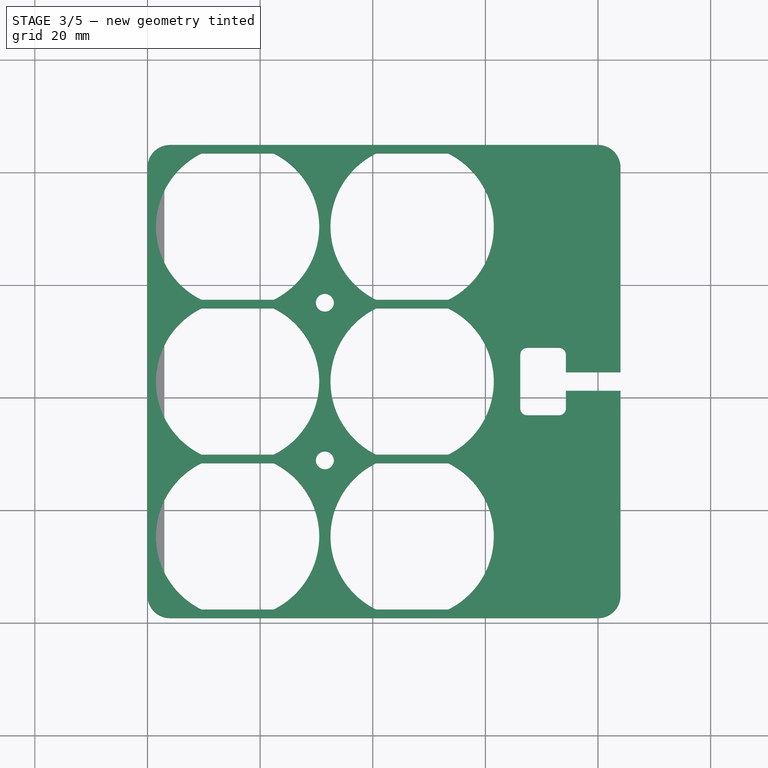
[diagram: stage 3 of 5 — top view after this stage's code; geometry added in this stage tinted green]
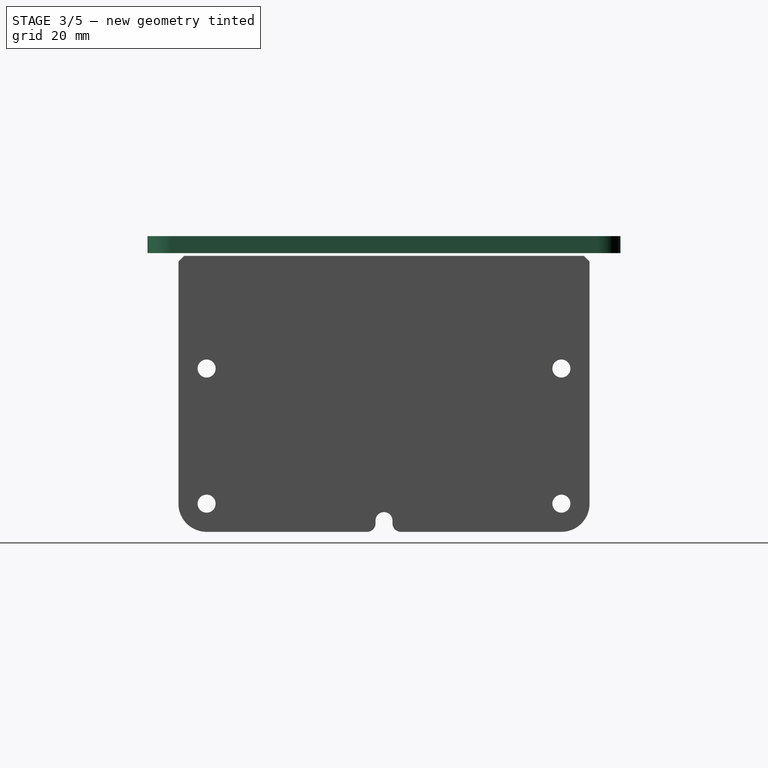
[diagram: stage 3 of 5 — right view after this stage's code; geometry added in this stage tinted green]
FEATURE [PartDesign::SubShapeBinder] Binder  label="Binder(MultiTransform001)"
  BindCopyOnChange = 0
  BindMode = 0
  ClaimChildren = false
  Context = -> Part019 [Body.Binder.]
  EdgeTolerance = 1e-06
  FillStyle = 0
  FixShape = 1
  Fuse = false
  InvalidShape = false
  MakeFace = true
  MergeEdges = true
  OffsetFill = false
  OffsetIntersection = false
  OffsetJoinType = 0
  OffsetOpenResult = false
  Outline = false
  PartialLoad = false
  Relative = true
  SplitEdges = false
  Support = -> [Body001[MultiTransform001.Face46]]
  TightBound = false
  TreeRank = 309
  ValidateShape = false
  _Version = 8
FEATURE [PartDesign::Pad] Pad003
  AddSubType = 0
  AlongSketchNormal = false
  AutoTaperInnerAngle = true
  CheckUpToFaceLimits = true
  ClaimChildren = false
  Direction = (0,0,1)
  Fit = 0
  FitJoin = 0
  FixShape = 1
  InnerFit = 0
  InnerFitJoin = 0
  InvalidShape = false
  Length = 3
  Length2 = 10
  Linearize = true
  NewSolid = false
  Profile = -> Binder
  Refine = true
  Suppress = false
  TaperInnerAngle = 0
  TaperInnerAngleRev = 0
  TreeRank = 310
  Type = 0
  ValidateShape = true
  _ProfileBasedVersion = 1
FEATURE [PartDesign::Fillet] Fillet001
  AddSubType = 0
  Base = -> Pad004 [Edge111,Edge168]
  BaseFeature = -> Pad004
  FixShape = 1
  InvalidShape = false
  NewSolid = false
  Radius = 4
  Refine = true
  SupportTransform = false
  Suppress = false
  TreeRank = 324
  UseAllEdges = false
  ValidateShape = true
FEATURE [Sketcher::SketchObject] Sketch008
  ArcFitTolerance = 1e-06
  AttachmentSupport = -> [Fillet001]
  ExternalBSplineMaxDegree = 5
  ExternalBSplineTolerance = 0.0001
  FixShape = 1
  FullyConstrained = true
  InternalTolerance = 1e-06
  InvalidShape = false
  MakeInternals = false
  MapMode = 5
  Placement = pos=(69,0,0) rot=(0.57735,0.57735,0.57735;2.0944rad)
  Support = -> [Fillet001]
  TreeRank = 325
  ValidateShape = false
  sketch-geometry (9):
    g0: Circle CenterX=10.5 CenterY=34.5 CenterZ=0 NormalX=0 NormalY=0 NormalZ=1 AngleXU=0 Radius=2.1
    g1: Circle CenterX=10.5 CenterY=10.5 CenterZ=0 NormalX=0 NormalY=0 NormalZ=1 AngleXU=0 Radius=2.1
    g2: Circle CenterX=73.5 CenterY=10.5 CenterZ=0 NormalX=0 NormalY=0 NormalZ=1 AngleXU=0 Radius=2.1
    g3: Circle CenterX=73.5 CenterY=34.5 CenterZ=0 NormalX=0 NormalY=0 NormalZ=1 AngleXU=0 Radius=2.1
    g4: LineSegment [constr] StartX=10.5 StartY=10.5 StartZ=0 EndX=10.5 EndY=34.5 EndZ=0
    g5: LineSegment [constr] StartX=10.5 StartY=34.5 StartZ=0 EndX=73.5 EndY=34.5 EndZ=0
    g6: LineSegment [constr] StartX=73.5 StartY=34.5 StartZ=0 EndX=73.5 EndY=10.5 EndZ=0
    g7: LineSegment [constr] StartX=73.5 StartY=10.5 StartZ=0 EndX=10.5 EndY=10.5 EndZ=0
    g8: GeomPoint [constr] X=42 Y=22.5 Z=0
  constraints (21):
    c: Coincident(g4,g5)
    c: Coincident(g5,g6)
    c: Coincident(g6,g7)
    c: Coincident(g7,g4)
    c: Horizontal(g5)
    c: Horizontal(g7)
    c: Vertical(g4)
    c: Vertical(g6)
    c: Symmetric(g5,g4,g8)
    c: Coincident(g5,g3)
    c: Coincident(g2,g6)
    c: Coincident(g1,g4)
    c: Coincident(g0,g4)
    c: Equal(g0,g1)
    c: Equal(g0,g3)
    c: Equal(g0,g2)
    c: Diameter(g0) = 4.2
    c: DistanceY(g4,g4) = 24
    c: DistanceX(g-1,g8) = 42
    c: DistanceX(g5,g5) = 63
    c: DistanceY(g-1,g1) = 10.5
FEATURE [PartDesign::Pocket] Pocket004
  AddSubType = 1
  AlongSketchNormal = false
  AutoTaperInnerAngle = true
  BaseFeature = -> Fillet001
  CheckUpToFaceLimits = true
  ClaimChildren = false
  Direction = (-1,0,0)
  Fit = 0
  FitJoin = 0
  FixShape = 1
  InnerFit = 0
  InnerFitJoin = 0
  InvalidShape = false
  Length = 7
  Length2 = 10
  Linearize = true
  NewSolid = false
  Profile = -> Sketch008
  ReferenceAxis = -> Sketch008 [N_Axis]
  Refine = true
  Suppress = false
  TaperInnerAngle = 0
  TaperInnerAngleRev = 0
  TreeRank = 326
  Type = 0
  ValidateShape = true
  _ProfileBasedVersion = 1
  _Version = 1
FEATURE [Sketcher::SketchObject] Sketch010
  ArcFitTolerance = 1e-06
  AttachmentSupport = -> [Pad003]
  ExternalBSplineMaxDegree = 5
  ExternalBSplineTolerance = 0.0001
  ExternalGeometry = -> [Pad003]
  FixShape = 1
  FullyConstrained = true
  InternalTolerance = 1e-06
  InvalidShape = false
  MakeInternals = false
  MapMode = 5
  Placement = pos=(0,0,55) rot=(1,0,0;3.14159rad)
  Support = -> [Pad003]
  TreeRank = 373
  ValidateShape = false
  sketch-geometry (5):
    g0: LineSegment [constr] StartX=31.5 StartY=-84 StartZ=0 EndX=31.5 EndY=-56 EndZ=0
    g1: LineSegment [constr] StartX=31.5 StartY=-56 StartZ=0 EndX=31.5 EndY=-28 EndZ=0
    g2: LineSegment [constr] StartX=31.5 StartY=-28 StartZ=0 EndX=31.5 EndY=0 EndZ=0
    g3: Circle CenterX=31.5 CenterY=-28 CenterZ=0 NormalX=0 NormalY=0 NormalZ=1 AngleXU=0 Radius=1.6
    g4: Circle CenterX=31.5 CenterY=-56 CenterZ=0 NormalX=0 NormalY=0 NormalZ=1 AngleXU=0 Radius=1.6
  constraints (14):
    c: PointOnObject(g0,g-3)
    c: Vertical(g0)
    c: Coincident(g1,g0)
    c: Vertical(g1)
    c: Coincident(g2,g1)
    c: PointOnObject(g2,g-1)
    c: Vertical(g2)
    c: Equal(g2,g1)
    c: Equal(g1,g0)
    c: DistanceX(g-1,g2) = 31.5
    c: Coincident(g3,g1)
    c: Coincident(g4,g0)
    c: Equal(g3,g4)
    c: Diameter(g3) = 3.2
FEATURE [PartDesign::Pocket] Pocket005
  AddSubType = 1
  AlongSketchNormal = false
  AutoTaperInnerAngle = true
  BaseFeature = -> Pad003
  CheckUpToFaceLimits = true
  ClaimChildren = false
  Direction = (0,0,1)
  Fit = 0
  FitJoin = 0
  FixShape = 1
  InnerFit = 0
  InnerFitJoin = 0
  InvalidShape = false
  Length = 5
  Length2 = 10
  Linearize = true
  NewSolid = false
  Profile = -> Sketch010
  ReferenceAxis = -> Sketch010 [N_Axis]
  Refine = true
  Suppress = false
  TaperInnerAngle = 0
  TaperInnerAngleRev = 0
  TreeRank = 374
  Type = 1
  ValidateShape = true
  _ProfileBasedVersion = 1
  _Version = 1
FEATURE [TechDraw::DrawSVGTemplate] Template
  Height = 210
  Orientation = 1
  Template = <path>
  TreeRank = 395
  Width = 297
FEATURE [TechDraw::DrawProjGroupItem] ProjItem  label="Front"
  CoarseView = false
  Direction = (0,0,1)
  Focus = 100
  HardHidden = false
  IsoCount = 0
  IsoHidden = false
  IsoVisible = false
  LockPosition = true
  Perspective = false
  Rotation = 0
  RotationVector = (1,0,0)
  ScaleType = 2
  ScrubCount = 0
  SeamHidden = false
  SeamVisible = false
  SmoothHidden = false
  SmoothVisible = false
  Source = -> [Pocket007]
  TreeRank = 398
  Type = 0
  X = 0
  XDirection = (1,0,0)
  Y = 0
FEATURE [TechDraw::DrawProjGroup] ProjGroup
  Anchor = -> ProjItem
  AutoDistribute = true
  LockPosition = false
  ProjectionType = 0
  Rotation = 0
  ScaleType = 0
  Source = -> [Pocket007]
  TreeRank = 399
  Views = -> [ProjItem]
  X = 44.4406
  Y = 166.303
  spacingX = 15
  spacingY = 15
FEATURE [TechDraw::DrawPage] Page  label="Laser3mm-TopDockPlexi"
  KeepUpdated = true
  NextBalloonIndex = 1
  ProjectionType = 0
  Template = -> Template
  TreeRank = 396
  Views = -> [ProjGroup]
FEATURE [TechDraw::DrawSVGTemplate] Template001
  Height = 210
  Orientation = 1
  Template = <path>
  TreeRank = 401
  Width = 297
FEATURE [TechDraw::DrawProjGroupItem] ProjItem001  label="Front001"
  CoarseView = false
  Direction = (1,0,0)
  Focus = 100
  HardHidden = false
  IsoCount = 0
  IsoHidden = false
  IsoVisible = false
  LockPosition = true
  Perspective = false
  Rotation = 0
  RotationVector = (0,1,0)
  ScaleType = 2
  ScrubCount = 0
  SeamHidden = false
  SeamVisible = false
  SmoothHidden = false
  SmoothVisible = false
  Source = -> [Chamfer003]
  TreeRank = 404
  Type = 0
  X = 0
  XDirection = (0,1,0)
  Y = 0
FEATURE [TechDraw::DrawProjGroup] ProjGroup001
  Anchor = -> ProjItem001
  AutoDistribute = true
  LockPosition = false
  ProjectionType = 0
  Rotation = 0
  ScaleType = 0
  Source = -> [Chamfer003]
  TreeRank = 405
  Views = -> [ProjItem001]
  X = 38.4516
  Y = 183.698
  spacingX = 15
  spacingY = 15
FEATURE [TechDraw::DrawPage] Page001  label="Laser3mm-CarterPCB"
  KeepUpdated = true
  NextBalloonIndex = 1
  ProjectionType = 0
  Template = -> Template001
  TreeRank = 402
  Views = -> [ProjGroup001]
FEATURE [PartDesign::FeatureBase] Clone
  BaseFeature = -> Pocket005
  FixShape = 1
  InvalidShape = false
  NewSolid = false
  Suppress = false
  TreeRank = 415
  ValidateShape = true
FEATURE [Part::SubShapeBinder] Import  label="Import(Pocket004)"
  BindCopyOnChange = 0
  BindMode = 0
  ClaimChildren = false
  Context = -> Part019 [Body003.Import.]
  EdgeTolerance = 1e-06
  FillStyle = 0
  FixShape = 1
  Fuse = false
  InvalidShape = false
  MakeFace = false
  MergeEdges = true
  OffsetFill = false
  OffsetIntersection = false
  OffsetJoinType = 0
  OffsetOpenResult = false
  Outline = false
  PartialLoad = false
  Relative = true
  SplitEdges = false
  Support = -> [Body001[Pocket004.]]
  TightBound = false
  TreeRank = 418
  ValidateShape = false
  _Version = 8
FEATURE [Sketcher::SketchObject] Sketch013
  ArcFitTolerance = 1e-06
  AttachmentSupport = -> [Clone]
  ExternalBSplineMaxDegree = 5
  ExternalBSplineTolerance = 0.0001
  ExternalGeometry = -> [Import]
  FixShape = 1
  FullyConstrained = true
  InternalTolerance = 1e-06
  InvalidShape = false
  MakeInternals = false
  MapMode = 5
  Placement = pos=(0,0,55) rot=(1,0,0;3.14159rad)
  Support = -> [Clone]
  TreeRank = 417
  ValidateShape = false
  sketch-geometry (12):
    g0: ArcOfCircle [constr] CenterX=70.25 CenterY=-37 CenterZ=0 NormalX=0 NormalY=0 NormalZ=1 AngleXU=0 Radius=4.25 StartAngle=0 EndAngle=3.14159
    g1: ArcOfCircle [constr] CenterX=70.25 CenterY=-47 CenterZ=0 NormalX=0 NormalY=0 NormalZ=1 AngleXU=0 Radius=4.25 StartAngle=3.14159 EndAngle=6.28319
    g2: LineSegment [constr] StartX=66 StartY=-37 StartZ=0 EndX=66 EndY=-47 EndZ=0
    g3: LineSegment [constr] StartX=74.5 StartY=-47 StartZ=0 EndX=74.5 EndY=-37 EndZ=0
    g4: GeomPoint [constr] X=70.25 Y=-42 Z=0
    g5: GeomPoint [constr] X=70.25 Y=-32.75 Z=0
    g6: GeomPoint [constr] X=70.25 Y=-51.25 Z=0
    g7: LineSegment StartX=66.2 StartY=-48 StartZ=0 EndX=66.2 EndY=-36 EndZ=0
    g8: LineSegment StartX=66.2 StartY=-36 StartZ=0 EndX=74.3 EndY=-36 EndZ=0
    g9: LineSegment StartX=74.3 StartY=-36 StartZ=0 EndX=74.3 EndY=-48 EndZ=0
    g10: LineSegment StartX=74.3 StartY=-48 StartZ=0 EndX=66.2 EndY=-48 EndZ=0
    g11: GeomPoint [constr] X=70.25 Y=-42 Z=0
  constraints (27):
    c: Tangent(g0,g2) = -1.5708
    c: Tangent(g2,g1) = -1.5708
    c: Tangent(g1,g3) = -1.5708
    c: Tangent(g3,g0) = -1.5708
    c: Equal(g0,g1)
    c: Vertical(g3)
    c: Symmetric(g0,g1,g4)
    c: DistanceX(g0,g0) = 8.5
    c: PointOnObject(g6,g1)
    c: Vertical(g6,g5)
    c: Vertical(g5,g4)
    c: DistanceY(g6,g5) = 18.5
    c: DistanceY(g4,g-1) = 42
    c: PointOnObject(g0,g-3)
    c: PointOnObject(g5,g0)
    c: Coincident(g7,g8)
    c: Coincident(g8,g9)
    c: Coincident(g9,g10)
    c: Coincident(g10,g7)
    c: Horizontal(g8)
    c: Horizontal(g10)
    c: Vertical(g7)
    c: Vertical(g9)
    c: Symmetric(g8,g7,g11)
    c: Coincident(g11,g4)
    c: DistanceX(g8,g8) = 8.1
    c: DistanceY(g9,g9) = 12
FEATURE [PartDesign::Pocket] Pocket008
  AddSubType = 1
  AlongSketchNormal = false
  AutoTaperInnerAngle = true
  BaseFeature = -> Clone
  CheckUpToFaceLimits = true
  ClaimChildren = false
  Direction = (0,0,1)
  Fit = 0
  FitJoin = 0
  FixShape = 1
  InnerFit = 0
  InnerFitJoin = 0
  InvalidShape = false
  Length = 5
  Length2 = 10
  Linearize = true
  NewSolid = false
  Profile = -> Sketch013
  ReferenceAxis = -> Sketch013 [N_Axis]
  Refine = true
  Suppress = false
  TaperInnerAngle = 0
  TaperInnerAngleRev = 0
  TreeRank = 419
  Type = 1
  ValidateShape = true
  _ProfileBasedVersion = 1
  _Version = 1
FEATURE [PartDesign::Fillet] Fillet003
  AddSubType = 0
  Base = -> Pocket008 [Edge108,Edge107,Edge109,Edge110]
  BaseFeature = -> Pocket008
  FixShape = 1
  InvalidShape = false
  NewSolid = false
  Radius = 1.2
  Refine = true
  SupportTransform = false
  Suppress = false
  TreeRank = 420
  UseAllEdges = false
  ValidateShape = true
FEATURE [PartDesign::Body] Body002  label="CarterPCB"
  AutoGroupSolids = false
  ClaimAllChildren = false
  ExportMode = 0
  FixShape = 1
  Group = -> [Sketch009,Pad005,Fillet002,Chamfer003,Sketch014,Pocket009,Fillet004]
  InvalidShape = false
  Origin = -> Origin023
  Placement = pos=(81,0,0) rot=(0,0,1;0rad)
  SingleSolid = true
  Tip = -> Fillet004
  TreeRank = 369
  ValidateShape = false
  _ExportChildren = -> [Pad005,Fillet002,Chamfer003,Pocket009,Fillet004]
  _GroupVersion = 1
FEATURE [Sketcher::SketchObject] Sketch015
  ArcFitTolerance = 1e-06
  AttachmentSupport = -> [Fillet003]
  ExternalBSplineMaxDegree = 5
  ExternalBSplineTolerance = 0.0001
  ExternalGeometry = -> [Fillet003]
  FixShape = 1
  FullyConstrained = true
  InternalTolerance = 1e-06
  InvalidShape = false
  MakeInternals = false
  MapMode = 5
  Placement = pos=(0,0,58) rot=(0,0,1;0rad)
  Support = -> [Fillet003]
  TreeRank = 424
  ValidateShape = false
  sketch-geometry (4):
    g0: ArcOfCircle CenterX=74.3 CenterY=42 CenterZ=0 NormalX=0 NormalY=0 NormalZ=1 AngleXU=0 Radius=1.65 StartAngle=1.5708 EndAngle=4.71239
    g1: ArcOfCircle CenterX=84 CenterY=42 CenterZ=0 NormalX=0 NormalY=0 NormalZ=1 AngleXU=0 Radius=1.65 StartAngle=4.71239 EndAngle=7.85398
    g2: LineSegment StartX=74.3 StartY=40.35 StartZ=0 EndX=84 EndY=40.35 EndZ=0
    g3: LineSegment StartX=84 StartY=43.65 StartZ=0 EndX=74.3 EndY=43.65 EndZ=0
  constraints (9):
    c: Tangent(g0,g2) = -1.5708
    c: Tangent(g2,g1) = -1.5708
    c: Tangent(g1,g3) = -1.5708
    c: Tangent(g3,g0) = -1.5708
    c: Equal(g0,g1)
    c: PointOnObject(g1,g-4)
    c: Horizontal(g2)
    c: DistanceY(g1,g1) = 3.3
    c: Symmetric(g-3,g-3,g0)
FEATURE [PartDesign::Pocket] Pocket010
  AddSubType = 1
  AlongSketchNormal = false
  AutoTaperInnerAngle = true
  BaseFeature = -> Fillet003
  CheckUpToFaceLimits = true
  ClaimChildren = false
  Direction = (0,0,-1)
  Fit = 0
  FitJoin = 0
  FixShape = 1
  InnerFit = 0
  InnerFitJoin = 0
  InvalidShape = false
  Length = 5
  Length2 = 10
  Linearize = true
  NewSolid = false
  Profile = -> Sketch015
  ReferenceAxis = -> Sketch015 [N_Axis]
  Refine = true
  Suppress = false
  TaperInnerAngle = 0
  TaperInnerAngleRev = 0
  TreeRank = 425
  Type = 1
  ValidateShape = true
  _ProfileBasedVersion = 1
  _Version = 1
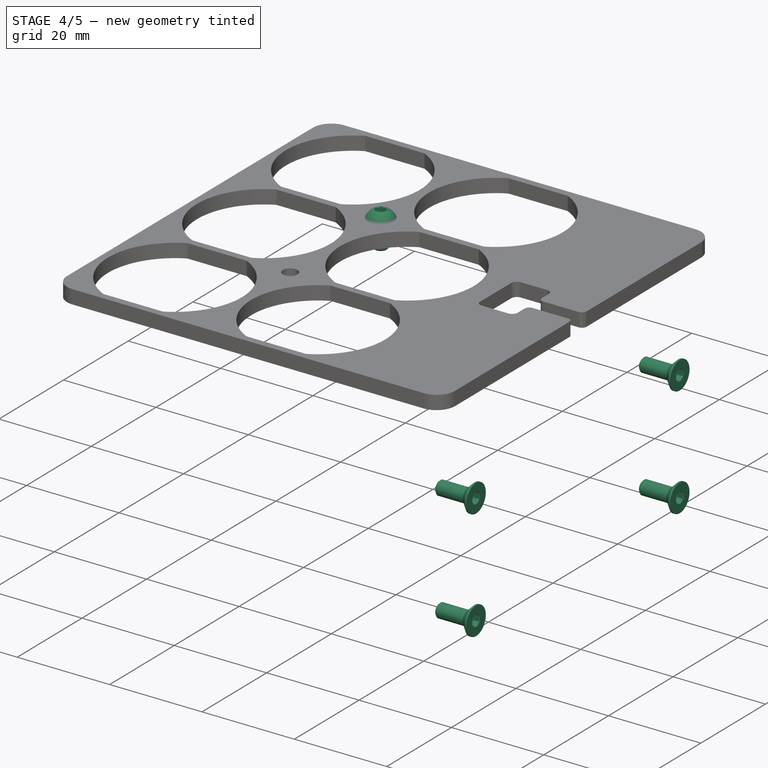
[diagram: stage 4 of 5 — iso view after this stage's code; geometry added in this stage tinted green]
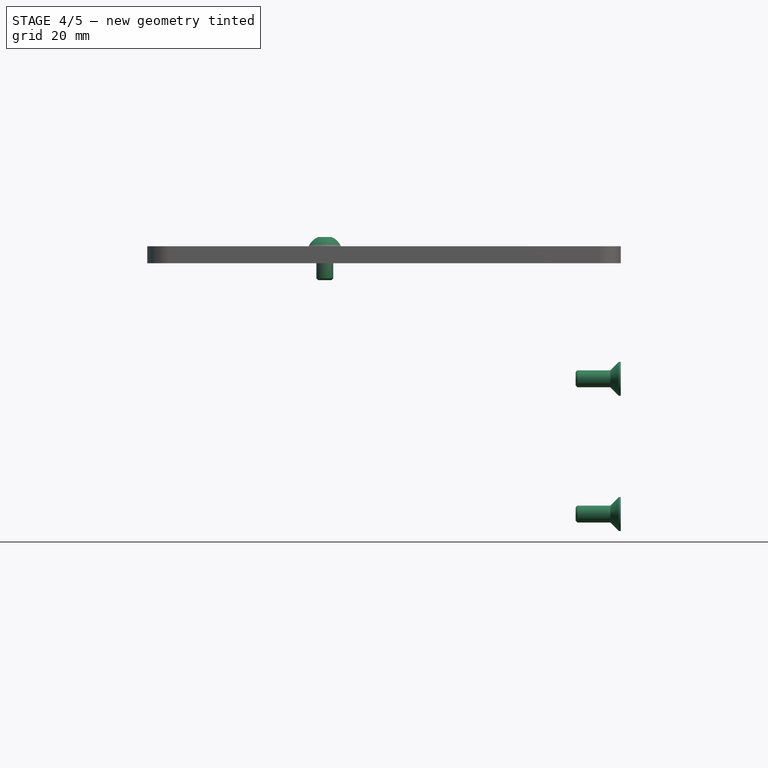
[diagram: stage 4 of 5 — front view after this stage's code; geometry added in this stage tinted green]
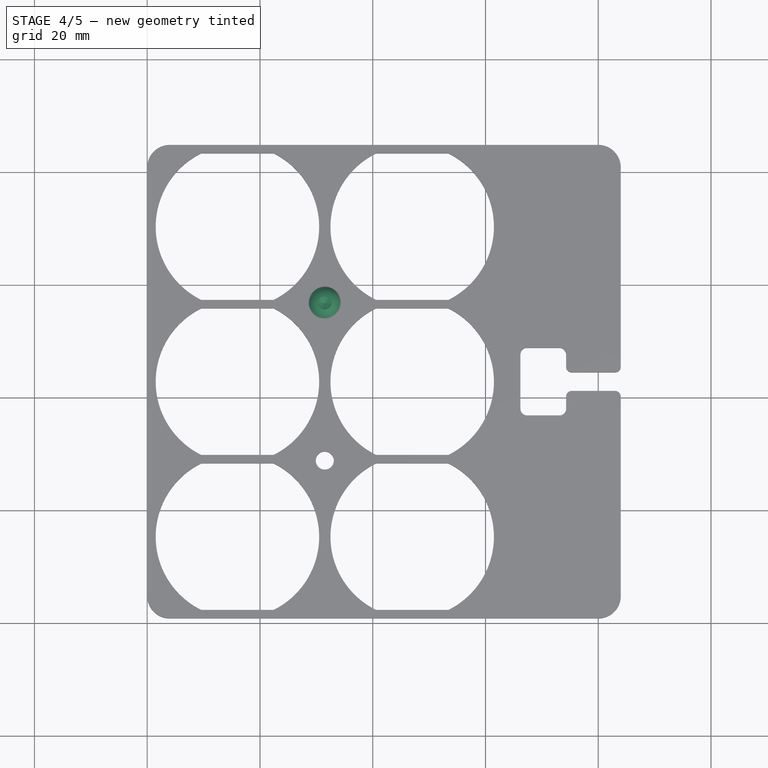
[diagram: stage 4 of 5 — top view after this stage's code; geometry added in this stage tinted green]
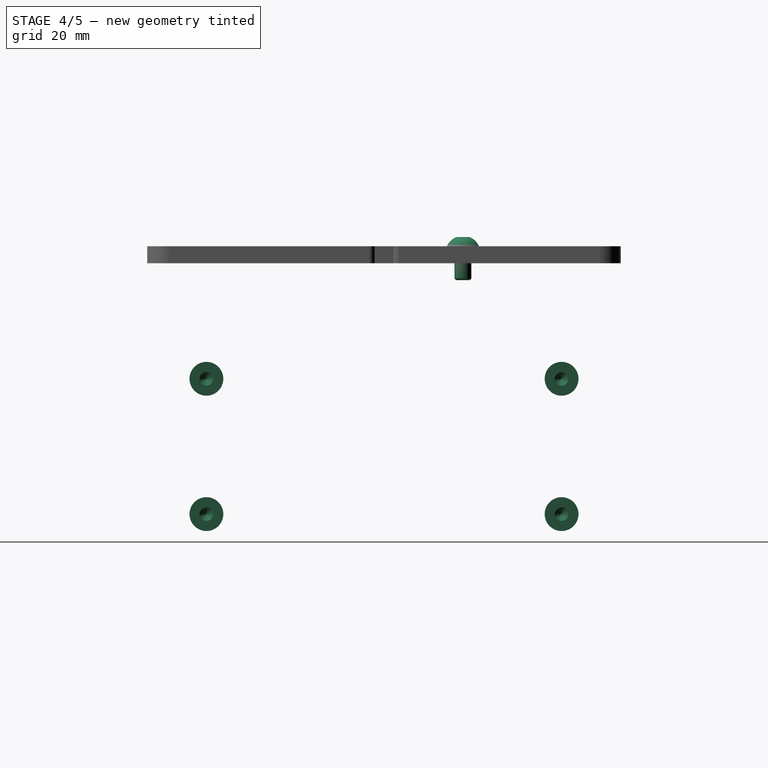
[diagram: stage 4 of 5 — right view after this stage's code; geometry added in this stage tinted green]
FEATURE [Part::FeaturePython] Screw001  label="M3x6-Vis001"  # Fasteners workbench fastener (typed FeaturePython)
  FixShape = 1
  InvalidShape = false
  Placement = pos=(31.5,56,58) rot=(0,0,1;0rad)
  TreeRank = 378
  ValidateShape = false
  baseObject = -> Body [Edge101]
  diameter = 1
  invert = true
  leftHanded = false
  length = 0
  lengthCustom = 6
  matchOuter = false
  offset = 0
  thread = false
  type = 54
FEATURE [Part::FeaturePython] Screw002  label="M3x8-Vis037"  # Fasteners workbench fastener (typed FeaturePython)
  FixShape = 1
  InvalidShape = false
  Placement = pos=(84,10.5,34.5) rot=(0,1,0;1.5708rad)
  TreeRank = 383
  ValidateShape = false
  baseObject = -> Body002 [Edge52]
  diameter = 3
  invert = false
  leftHanded = false
  length = 0
  lengthCustom = 8
  matchOuter = false
  offset = 0
  thread = false
  type = 32
FEATURE [Part::FeaturePython] Screw003  label="M3x8-Vis"  # Fasteners workbench fastener (typed FeaturePython)
  FixShape = 1
  InvalidShape = false
  Placement = pos=(84,10.5,10.5) rot=(0,1,0;1.5708rad)
  TreeRank = 384
  ValidateShape = false
  baseObject = -> Body002 [Edge48]
  diameter = 3
  invert = false
  leftHanded = false
  length = 0
  lengthCustom = 8
  matchOuter = false
  offset = 0
  thread = false
  type = 32
FEATURE [Part::FeaturePython] Screw004  label="M3x8-Vis038"  # Fasteners workbench fastener (typed FeaturePython)
  FixShape = 1
  InvalidShape = false
  Placement = pos=(84,73.5,10.5) rot=(0,1,0;1.5708rad)
  TreeRank = 385
  ValidateShape = false
  baseObject = -> Body002 [Edge50]
  diameter = 3
  invert = false
  leftHanded = false
  length = 0
  lengthCustom = 8
  matchOuter = false
  offset = 0
  thread = false
  type = 32
FEATURE [Part::FeaturePython] Screw005  label="M3x8-Vis039"  # Fasteners workbench fastener (typed FeaturePython)
  FixShape = 1
  InvalidShape = false
  Placement = pos=(84,73.5,34.5) rot=(0,1,0;1.5708rad)
  TreeRank = 386
  ValidateShape = false
  baseObject = -> Body002 [Edge54]
  diameter = 3
  invert = false
  leftHanded = false
  length = 0
  lengthCustom = 8
  matchOuter = false
  offset = 0
  thread = false
  type = 32
FEATURE [App::DocumentObjectGroup] Group  label="Visserie"
  ClaimAllChildren = true
  ExportMode = 1
  Group = -> [Insert,Insert001,Insert002,Insert003,Standoff,Standoff001,Standoff002,Standoff003,Screw,Screw001,Screw003,Screw002,Screw004,Screw005]
  TreeRank = 335
  _GroupVersion = 1
FEATURE [Sketcher::SketchObject] Sketch011
  ArcFitTolerance = 1e-06
  AttachmentSupport = -> [Pocket005]
  ExternalBSplineMaxDegree = 5
  ExternalBSplineTolerance = 0.0001
  FixShape = 1
  FullyConstrained = true
  InternalTolerance = 1e-06
  InvalidShape = false
  MakeInternals = false
  MapMode = 5
  Placement = pos=(0,0,55) rot=(1,0,0;3.14159rad)
  Support = -> [Pocket005]
  TreeRank = 387
  ValidateShape = false
  sketch-geometry (11):
    g0: ArcOfCircle CenterX=71.8 CenterY=-12 CenterZ=0 NormalX=0 NormalY=0 NormalZ=1 AngleXU=0 Radius=1 StartAngle=1.5708 EndAngle=3.14159
    g1: LineSegment StartX=71.8 StartY=-11 StartZ=0 EndX=77.8 EndY=-11 EndZ=0
    g2: ArcOfCircle CenterX=77.8 CenterY=-12 CenterZ=0 NormalX=0 NormalY=0 NormalZ=1 AngleXU=0 Radius=1 StartAngle=0 EndAngle=1.5708
    g3: LineSegment StartX=78.8 StartY=-12 StartZ=0 EndX=78.8 EndY=-26 EndZ=0
    g4: ArcOfCircle CenterX=77.8 CenterY=-26 CenterZ=0 NormalX=0 NormalY=0 NormalZ=1 AngleXU=0 Radius=1 StartAngle=4.71239 EndAngle=6.28319
    g5: LineSegment StartX=77.8 StartY=-27 StartZ=0 EndX=71.8 EndY=-27 EndZ=0
    g6: ArcOfCircle CenterX=71.8 CenterY=-26 CenterZ=0 NormalX=0 NormalY=0 NormalZ=1 AngleXU=0 Radius=1 StartAngle=3.14159 EndAngle=4.71239
    g7: LineSegment StartX=70.8 StartY=-26 StartZ=0 EndX=70.8 EndY=-12 EndZ=0
    g8: GeomPoint [constr] X=70.8 Y=-11 Z=0
    g9: GeomPoint [constr] X=78.8 Y=-27 Z=0
    g10: GeomPoint [constr] X=74.8 Y=-19 Z=0
  constraints (25):
    c: Tangent(g0,g1) = 1.5708
    c: Tangent(g1,g2) = 1.5708
    c: Tangent(g2,g3) = 1.5708
    c: Tangent(g3,g4) = 1.5708
    c: Tangent(g4,g5) = 1.5708
    c: Tangent(g5,g6) = 1.5708
    c: Tangent(g6,g7) = 1.5708
    c: Tangent(g7,g0) = 1.5708
    c: Horizontal(g1)
    c: Horizontal(g5)
    c: Vertical(g3)
    c: Vertical(g7)
    c: Equal(g0,g2)
    c: Equal(g2,g4)
    c: Equal(g4,g6)
    c: PointOnObject(g8,g1)
    c: PointOnObject(g8,g7)
    c: PointOnObject(g9,g3)
    c: PointOnObject(g9,g5)
    c: Symmetric(g0,g4,g10)
    c: DistanceY(g4,g1) = 16
    c: DistanceX(g0,g2) = 8
    c: Radius(g4) = 1
    c: DistanceX(g10) = 74.8
    c: DistanceY(g10,g-1) = 19
FEATURE [PartDesign::Pocket] Pocket006
  AddSubType = 1
  AlongSketchNormal = false
  AutoTaperInnerAngle = true
  BaseFeature = -> Pocket005
  CheckUpToFaceLimits = true
  ClaimChildren = false
  Direction = (0,0,1)
  Fit = 0
  FitJoin = 0
  FixShape = 1
  InnerFit = 0
  InnerFitJoin = 0
  InvalidShape = false
  Length = 5
  Length2 = 10
  Linearize = true
  NewSolid = false
  Profile = -> Sketch011
  ReferenceAxis = -> Sketch011 [N_Axis]
  Refine = true
  Suppress = false
  TaperInnerAngle = 0
  TaperInnerAngleRev = 0
  TreeRank = 388
  Type = 1
  ValidateShape = true
  _ProfileBasedVersion = 1
  _Version = 1
FEATURE [PartDesign::LinearPattern] LinearPattern004
  AddSubType = 0
  BaseFeature = -> Pocket006
  CopyShape = false
  Direction = -> Sketch011 [V_Axis]
  FixShape = 1
  InvalidShape = false
  Length = 36
  NewSolid = false
  Occurrences = 3
  OriginalSubs = -> [Pocket006]
  Originals = -> [Pocket006]
  ParallelTransform = true
  Refine = true
  Reversed = true
  SubTransform = true
  Suppress = false
  TreeRank = 389
  ValidateShape = true
  _Version = 3
FEATURE [Sketcher::SketchObject] Sketch012
  ArcFitTolerance = 1e-06
  AttachmentSupport = -> [LinearPattern004]
  ExternalBSplineMaxDegree = 5
  ExternalBSplineTolerance = 0.0001
  FixShape = 1
  FullyConstrained = true
  InternalTolerance = 1e-06
  InvalidShape = false
  MakeInternals = false
  MapMode = 5
  Placement = pos=(0,0,55) rot=(1,0,0;3.14159rad)
  Support = -> [LinearPattern004]
  TreeRank = 390
  ValidateShape = false
  sketch-geometry (1):
    g0: Circle CenterX=73.8 CenterY=-69 CenterZ=0 NormalX=0 NormalY=0 NormalZ=1 AngleXU=0 Radius=3
  constraints (3):
    c: Diameter(g0) = 6
    c: DistanceY(g-1,g0) = -69
    c: DistanceX(g-1,g0) = 73.8
FEATURE [PartDesign::Pocket] Pocket007
  AddSubType = 1
  AlongSketchNormal = false
  AutoTaperInnerAngle = true
  BaseFeature = -> LinearPattern004
  CheckUpToFaceLimits = true
  ClaimChildren = false
  Direction = (0,0,1)
  Fit = 0
  FitJoin = 0
  FixShape = 1
  InnerFit = 0
  InnerFitJoin = 0
  InvalidShape = false
  Length = 5
  Length2 = 10
  Linearize = true
  NewSolid = false
  Profile = -> Sketch012
  ReferenceAxis = -> Sketch012 [N_Axis]
  Refine = true
  Suppress = false
  TaperInnerAngle = 0
  TaperInnerAngleRev = 0
  TreeRank = 391
  Type = 1
  ValidateShape = true
  _ProfileBasedVersion = 1
  _Version = 1
FEATURE [PartDesign::Fillet] Fillet005
  AddSubType = 0
  Base = -> Pocket010 [Edge79,Edge56,Edge76,Edge59]
  BaseFeature = -> Pocket010
  FixShape = 1
  InvalidShape = false
  NewSolid = false
  Radius = 1
  Refine = true
  SupportTransform = false
  Suppress = false
  TreeRank = 426
  UseAllEdges = false
  ValidateShape = true
FEATURE [PartDesign::Body] Body003  label="TopDockCable"
  AutoGroupSolids = false
  BaseFeature = -> Pocket005
  ClaimAllChildren = false
  ExportMode = 0
  FixShape = 1
  Group = -> [Clone,Sketch013,Import,Pocket008,Fillet003,Sketch015,Pocket010,Fillet005]
  InvalidShape = false
  Origin = -> Origin024
  SingleSolid = true
  Tip = -> Fillet005
  TreeRank = 416
  ValidateShape = false
  _ExportChildren = -> [Clone,Import,Pocket008,Fillet003,Pocket010,Fillet005]
  _GroupVersion = 1
FEATURE [App::Part] Part019  label="BatteryDockAssembly"
  ClaimAllChildren = false
  ExportMode = 1
  Group = -> [Body001,Body,Group,Insert002,Insert003,Insert001,Insert,Standoff,Standoff001,Standoff002,Standoff003,Body002,Screw,Screw001,Screw003,Screw002,Screw004,Screw005,Part,Body003]
  Origin = -> Origin020
  TreeRank = 270
  _ExportChildren = -> [Body001,Body,Group,Body002,Part,Body003]
  _GroupVersion = 1
FEATURE [TechDraw::DrawSVGTemplate] Template002
  Height = 210
  Orientation = 1
  Template = <path>
  TreeRank = 428
  Width = 297
FEATURE [TechDraw::DrawProjGroupItem] ProjItem002  label="Front002"
  CoarseView = false
  Direction = (0,0,1)
  Focus = 100
  HardHidden = false
  IsoCount = 0
  IsoHidden = false
  IsoVisible = false
  LockPosition = true
  Perspective = false
  Rotation = 0
  RotationVector = (1,0,0)
  ScaleType = 2
  ScrubCount = 0
  SeamHidden = false
  SeamVisible = false
  SmoothHidden = false
  SmoothVisible = false
  Source = -> [Fillet005]
  TreeRank = 431
  Type = 0
  X = 0
  XDirection = (1,0,0)
  Y = 0
FEATURE [TechDraw::DrawProjGroup] ProjGroup002
  Anchor = -> ProjItem002
  AutoDistribute = true
  LockPosition = false
  ProjectionType = 0
  Rotation = 0
  ScaleType = 0
  Source = -> [Fillet005]
  TreeRank = 432
  Views = -> [ProjItem002]
  X = 42.94
  Y = 167.088
  spacingX = 15
  spacingY = 15
FEATURE [TechDraw::DrawProjGroupItem] ProjItem003  label="Front003"
  CoarseView = false
  Direction = (1,0,0)
  Focus = 100
  HardHidden = false
  IsoCount = 0
  IsoHidden = false
  IsoVisible = false
  LockPosition = true
  Perspective = false
  Rotation = 0
  RotationVector = (0,1,0)
  ScaleType = 2
  ScrubCount = 0
  SeamHidden = false
  SeamVisible = false
  SmoothHidden = false
  SmoothVisible = false
  Source = -> [Fillet004]
  TreeRank = 434
  Type = 0
  X = 0
  XDirection = (0,1,0)
  Y = 0
FEATURE [TechDraw::DrawProjGroup] ProjGroup003
  Anchor = -> ProjItem003
  AutoDistribute = true
  LockPosition = false
  ProjectionType = 0
  Rotation = 0
  ScaleType = 0
  Source = -> [Fillet004]
  TreeRank = 435
  Views = -> [ProjItem003]
  X = 37.5917
  Y = 99.557
  spacingX = 15
  spacingY = 15
FEATURE [TechDraw::DrawPage] Page002  label="Laser3mm"
  KeepUpdated = true
  NextBalloonIndex = 1
  ProjectionType = 0
  Template = -> Template002
  TreeRank = 429
  Views = -> [ProjGroup002,ProjGroup003]
FEATURE [App::DocumentObjectGroup] Group001  label="Laser"
  ClaimAllChildren = true
  ExportMode = 1
  Group = -> [Page,Page001,Page002]
  TreeRank = 393
  _GroupVersion = 1
note: 3 file-system paths scrubbed to <path> (originals preserved in the JSON sidecar)
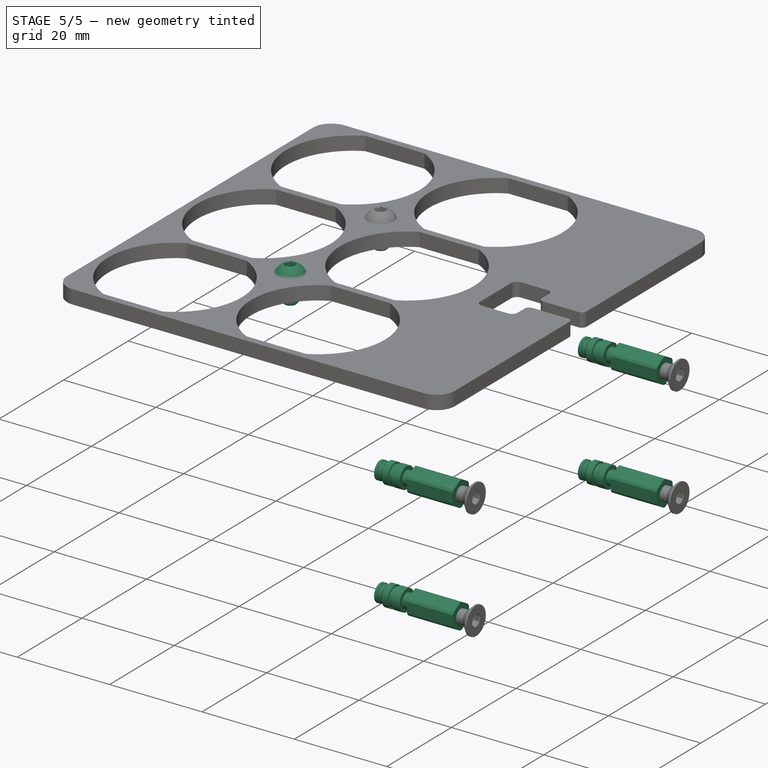
[diagram: stage 5 of 5 — iso view after this stage's code; geometry added in this stage tinted green]
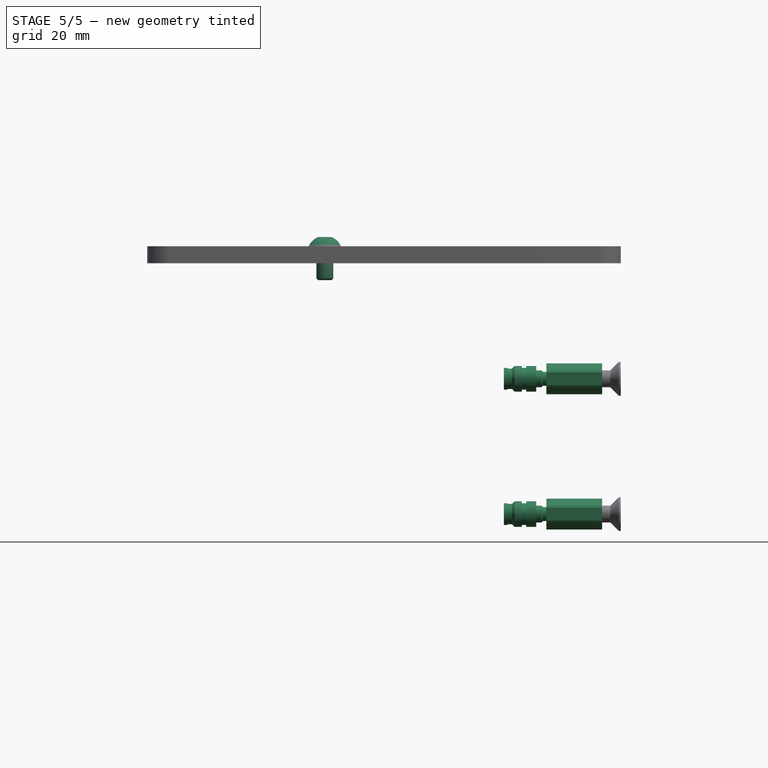
[diagram: stage 5 of 5 — front view after this stage's code; geometry added in this stage tinted green]
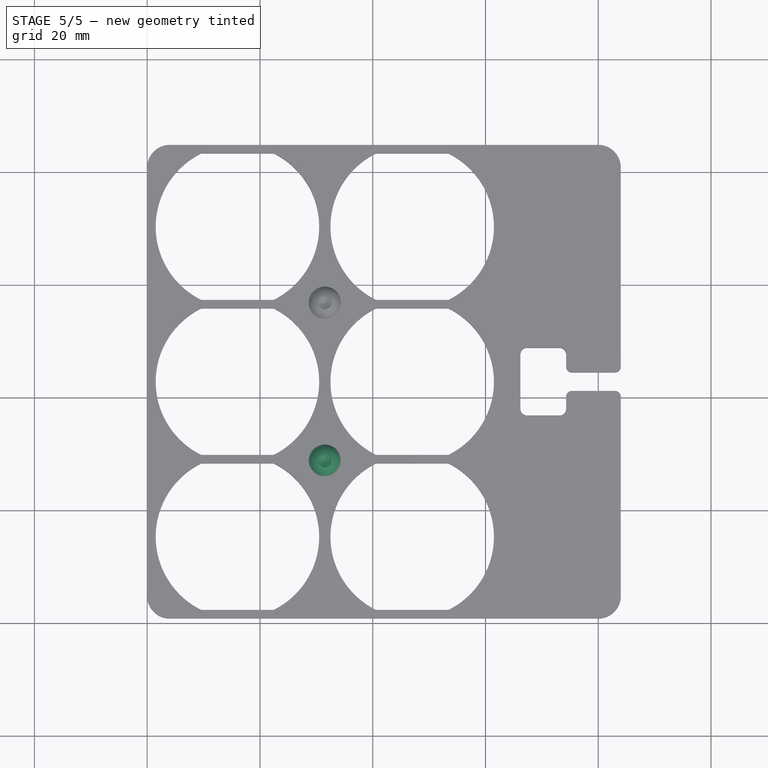
[diagram: stage 5 of 5 — top view after this stage's code; geometry added in this stage tinted green]
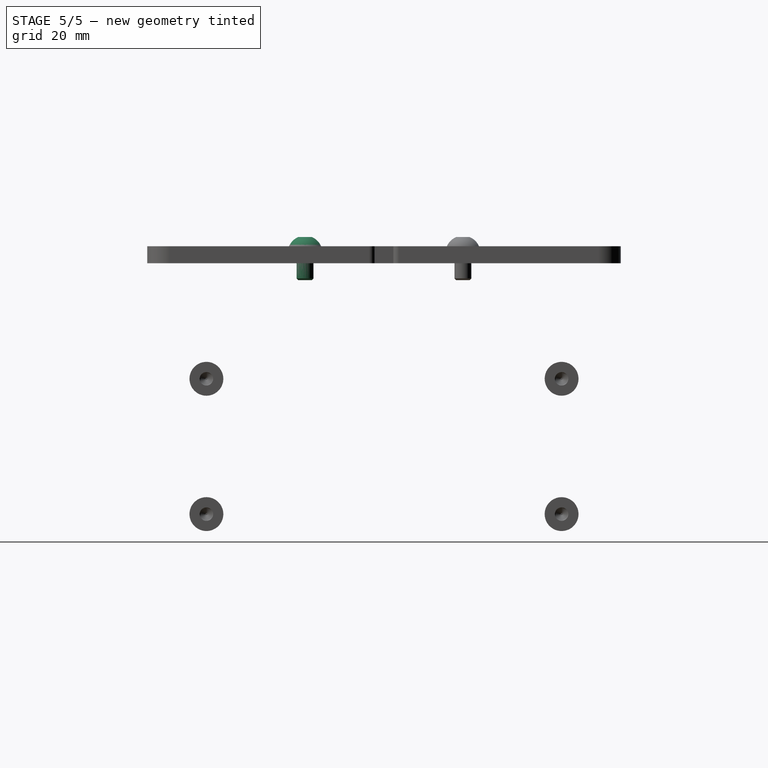
[diagram: stage 5 of 5 — right view after this stage's code; geometry added in this stage tinted green]
FEATURE [PartDesign::Body] Body001  label="BatteryDock"
  AutoGroupSolids = false
  ClaimAllChildren = false
  ExportMode = 0
  FixShape = 1
  Group = -> [Sketch001,Pad001,Sketch002,Pad002,Chamfer,Chamfer001,MultiTransform,LinearPattern,LinearPattern001,Sketch,Pad,Sketch003,Pocket,MultiTransform001,LinearPattern002,LinearPattern003,Sketch004,Pocket001,Sketch005,Pocket002,Chamfer002,Fillet,Sketch007,Pad004,Fillet001,Sketch008,Pocket004]
  InvalidShape = false
  Origin = -> Origin021
  Tip = -> Pocket004
  TreeRank = 280
  ValidateShape = false
  _ExportChildren = -> [Pad001,Pad002,Chamfer,Chamfer001,MultiTransform,Pad,Pocket,MultiTransform001,Pocket001,Pocket002,Chamfer002,Fillet,Pad004,Fillet001,Pocket004]
  _GroupVersion = 1
FEATURE [Part::FeaturePython] Insert  label="M3x5.74-Insert"  # Fasteners workbench fastener (typed FeaturePython)
  FixShape = 1
  InvalidShape = false
  Placement = pos=(69,73.5,34.5) rot=(0,1,0;1.5708rad)
  TreeRank = 331
  ValidateShape = false
  baseObject = -> Body001 [Edge75]
  diameter = 3
  externalDiam = 4.55
  invert = false
  leftHanded = false
  length = 5.74
  matchOuter = false
  offset = 0
  thread = false
  type = 0
FEATURE [Part::FeaturePython] Insert001  label="M3x5.74-Insert007"  # Fasteners workbench fastener (typed FeaturePython)
  FixShape = 1
  InvalidShape = false
  Placement = pos=(69,73.5,10.5) rot=(0,1,0;1.5708rad)
  TreeRank = 332
  ValidateShape = false
  baseObject = -> Body001 [Edge74]
  diameter = 3
  externalDiam = 4.55
  invert = false
  leftHanded = false
  length = 5.74
  matchOuter = false
  offset = 0
  thread = false
  type = 0
FEATURE [Part::FeaturePython] Insert002  label="M3x5.74-Insert008"  # Fasteners workbench fastener (typed FeaturePython)
  FixShape = 1
  InvalidShape = false
  Placement = pos=(69,10.5,10.5) rot=(0,1,0;1.5708rad)
  TreeRank = 333
  ValidateShape = false
  baseObject = -> Body001 [Edge82]
  diameter = 3
  externalDiam = 4.55
  invert = false
  leftHanded = false
  length = 5.74
  matchOuter = false
  offset = 0
  thread = false
  type = 0
FEATURE [Part::FeaturePython] Insert003  label="M3x5.74-Insert009"  # Fasteners workbench fastener (typed FeaturePython)
  FixShape = 1
  InvalidShape = false
  Placement = pos=(69,10.5,34.5) rot=(0,1,0;1.5708rad)
  TreeRank = 334
  ValidateShape = false
  baseObject = -> Body001 [Edge83]
  diameter = 3
  externalDiam = 4.55
  invert = false
  leftHanded = false
  length = 5.74
  matchOuter = false
  offset = 0
  thread = false
  type = 0
FEATURE [Part::FeaturePython] Standoff  label="M3x10xx5-Entretoise filetéé"  # Fasteners workbench fastener (typed FeaturePython)
  FixShape = 1
  InvalidShape = false
  Placement = pos=(70.8,73.5,34.5) rot=(0,1,0;1.5708rad)
  TreeRank = 356
  ValidateShape = false
  baseObject = -> Body001 [Edge75]
  diameter = 2
  invert = false
  leftHanded = false
  length = 0
  lengthCustom = 10
  matchOuter = false
  offset = 1.8
  screwLength = 6
  thread = false
  type = 0
  width = 0
FEATURE [Part::FeaturePython] Standoff001  label="M3x10xx5-Entretoise filetéé007"  # Fasteners workbench fastener (typed FeaturePython)
  FixShape = 1
  InvalidShape = false
  Placement = pos=(70.8,73.5,10.5) rot=(0,1,0;1.5708rad)
  TreeRank = 357
  ValidateShape = false
  baseObject = -> Body001 [Edge74]
  diameter = 2
  invert = false
  leftHanded = false
  length = 0
  lengthCustom = 10
  matchOuter = false
  offset = 1.8
  screwLength = 6
  thread = false
  type = 0
  width = 0
FEATURE [Part::FeaturePython] Standoff002  label="M3x10xx5-Entretoise filetéé008"  # Fasteners workbench fastener (typed FeaturePython)
  FixShape = 1
  InvalidShape = false
  Placement = pos=(70.8,10.5,10.5) rot=(0,1,0;1.5708rad)
  TreeRank = 358
  ValidateShape = false
  baseObject = -> Body001 [Edge82]
  diameter = 2
  invert = false
  leftHanded = false
  length = 0
  lengthCustom = 10
  matchOuter = false
  offset = 1.8
  screwLength = 6
  thread = false
  type = 0
  width = 0
FEATURE [Part::FeaturePython] Standoff003  label="M3x10xx5-Entretoise filetéé009"  # Fasteners workbench fastener (typed FeaturePython)
  FixShape = 1
  InvalidShape = false
  Placement = pos=(70.8,10.5,34.5) rot=(0,1,0;1.5708rad)
  TreeRank = 359
  ValidateShape = false
  baseObject = -> Body001 [Edge83]
  diameter = 2
  invert = false
  leftHanded = false
  length = 0
  lengthCustom = 10
  matchOuter = false
  offset = 1.8
  screwLength = 6
  thread = false
  type = 0
  width = 0
FEATURE [Part::FeaturePython] Screw  label="M3x6-Vis"  # Fasteners workbench fastener (typed FeaturePython)
  FixShape = 1
  InvalidShape = false
  Placement = pos=(31.5,28,58) rot=(0,0,1;0rad)
  TreeRank = 377
  ValidateShape = false
  baseObject = -> Body [Edge76]
  diameter = 1
  invert = true
  leftHanded = false
  length = 0
  lengthCustom = 6
  matchOuter = false
  offset = 0
  thread = false
  type = 54
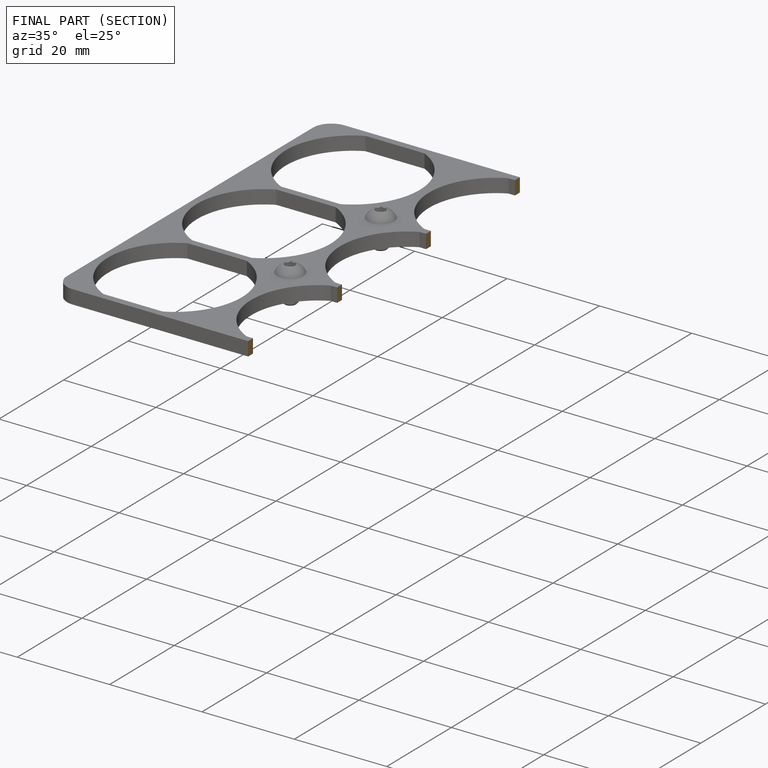
[diagram: finished part — half-section view (interior)]
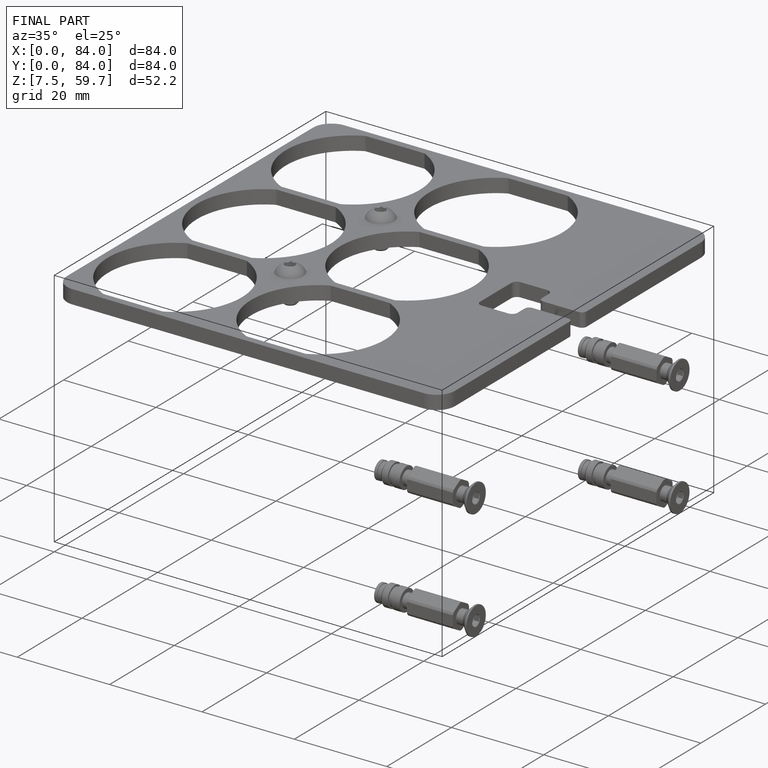
[diagram: finished part — iso view with bounding-box wireframe]
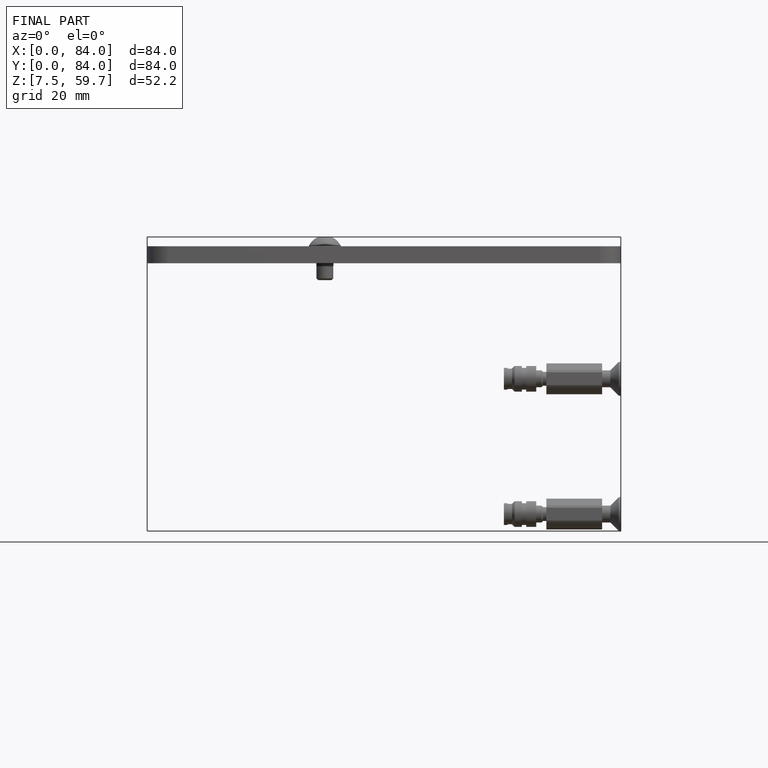
[diagram: finished part — front view with bounding-box wireframe]
